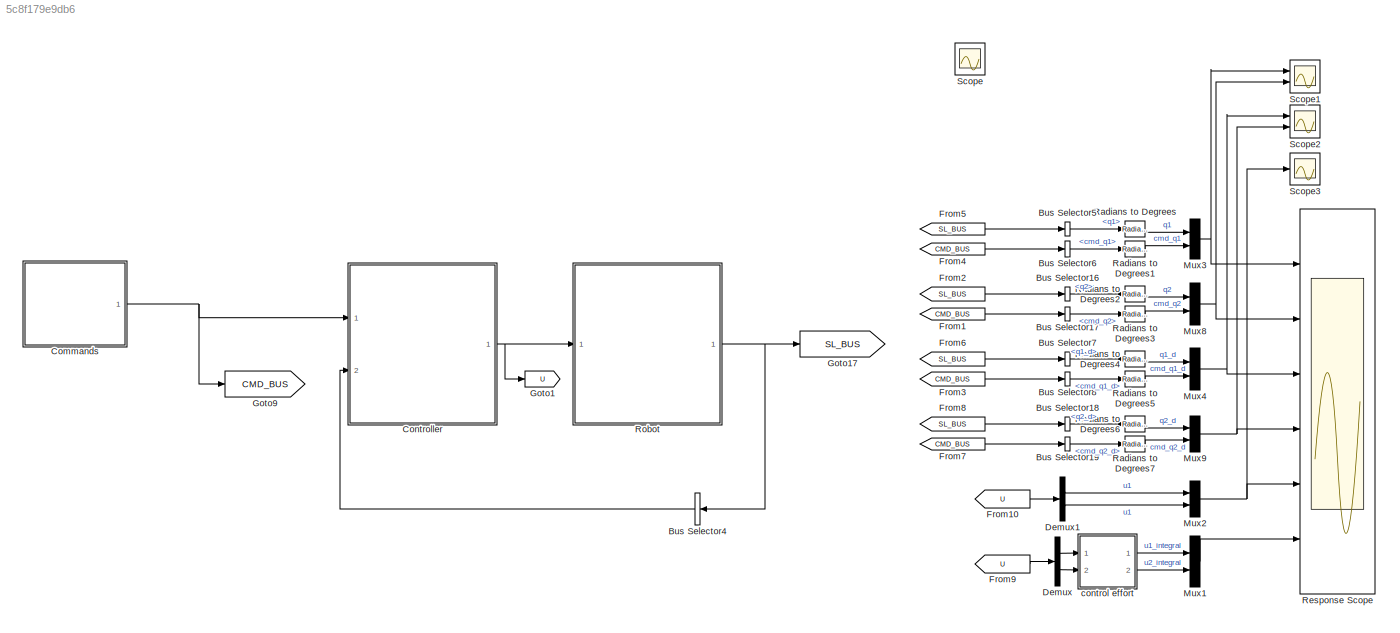
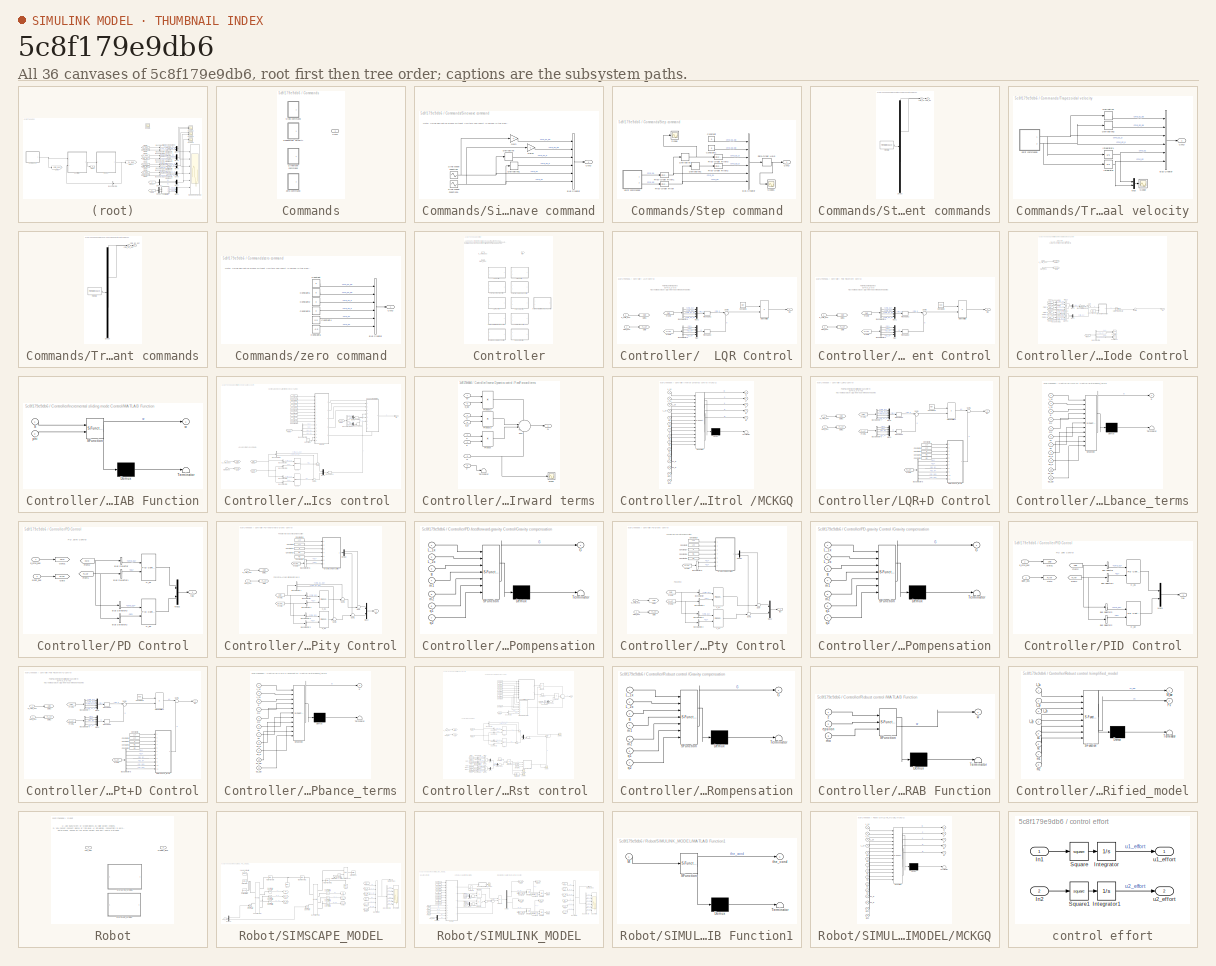
[diagram: thumbnail index - all 36 canvases of the model, root first then tree order]
MODEL slx_5c8f179e9db6
KIND model
CONFIG AbsTol = auto
CONFIG EnableMultiTasking = on
CONFIG FixedStep = auto
CONFIG MaxStep = auto
CONFIG MinStep = auto
CONFIG RelTol = 1e-5
CONFIG SampleTimeConstraint = Unconstrained
CONFIG SolverName = ode15s
CONFIG StartTime = 0.0
CONFIG StopTime = 15
BLOCK [BusSelector] Bus Selector16
  OutputSignals = q2
  Ports = [1, 1]
BLOCK [BusSelector] Bus Selector17
  OutputSignals = cmd_q2
  Ports = [1, 1]
BLOCK [BusSelector] Bus Selector18
  OutputSignals = q2_d
  Ports = [1, 1]
BLOCK [BusSelector] Bus Selector19
  OutputSignals = cmd_q2_d
  Ports = [1, 1]
BLOCK [BusSelector] Bus Selector4
  NameLocation = top
  OutputAsBus = on
  OutputSignals = q1_dd,q2_dd,q1_d,q2_d,q1,q2
  Ports = [1, 1]
BLOCK [BusSelector] Bus Selector5
  OutputSignals = q1
  Ports = [1, 1]
BLOCK [BusSelector] Bus Selector6
  OutputSignals = cmd_q1
  Ports = [1, 1]
BLOCK [BusSelector] Bus Selector7
  OutputSignals = q1_d
  Ports = [1, 1]
BLOCK [BusSelector] Bus Selector8
  OutputSignals = cmd_q1_d
  Ports = [1, 1]
BLOCK [SubSystem] Commands
  LabelModeActiveChoice = sinwave
  Ports = [0, 1]
  RequestExecContextInheritance = off
  Variant = on
  VariantControlMode = label
BLOCK [Outport] Commands/CMD
BLOCK [SubSystem] Commands/Sinewave command
  Ports = [0, 1]
  RequestExecContextInheritance = off
  VariantControl = sinwave
BLOCK [BusCreator] Commands/Sinewave command/Bus Creator
  DisplayOption = bar
  InheritFromInputs = on
  Inputs = 6
  Ports = [6, 1]
BLOCK [Outport] Commands/Sinewave command/CMD
BLOCK [Derivative] Commands/Sinewave command/Derivative
BLOCK [Derivative] Commands/Sinewave command/Derivative1
BLOCK [Gain] Commands/Sinewave command/Gain
  Gain = -1
BLOCK [Gain] Commands/Sinewave command/Gain1
  Gain = -1
BLOCK [Sin] Commands/Sinewave command/Sine Wave Function
  Ports = [0, 1]
  SampleTime = 0
BLOCK [Sin] Commands/Sinewave command/Sine Wave Function1
  Amplitude = 0.5
  Ports = [0, 1]
  SampleTime = 0
BLOCK [SubSystem] Commands/Step command
  Ports = [0, 1]
  RequestExecContextInheritance = off
  VariantControl = step
BLOCK [BusCreator] Commands/Step command/Bus Creator
  DisplayOption = bar
  InheritFromInputs = on
  Inputs = 6
  Ports = [6, 1]
BLOCK [Outport] Commands/Step command/CMD
BLOCK [Constant] Commands/Step command/Constant
  Value = 0
BLOCK [Constant] Commands/Step command/Constant1
  Value = 0
BLOCK [Derivative] Commands/Step command/Derivative
BLOCK [Derivative] Commands/Step command/Derivative1
BLOCK [Reference] Commands/Step command/First-Order Filter  REF=spsFirstOrderFilterLib/First-Order
Filter
  Ports = [1, 1]
  SourceBlock = spsFirstOrderFilterLib/First-Order\nFilter
  SourceProductBaseCode = PS
  SourceType = First-Order Filter
BLOCK [Reference] Commands/Step command/First-Order Filter1  REF=spsFirstOrderFilterLib/First-Order
Filter
  Ports = [1, 1]
  SourceBlock = spsFirstOrderFilterLib/First-Order\nFilter
  SourceProductBaseCode = PS
  SourceType = First-Order Filter
BLOCK [Reference] Commands/Step command/First-Order Filter2  REF=spsFirstOrderFilterLib/First-Order
Filter
  Ports = [1, 1]
  SourceBlock = spsFirstOrderFilterLib/First-Order\nFilter
  SourceProductBaseCode = PS
  SourceType = First-Order Filter
BLOCK [Reference] Commands/Step command/First-Order Filter3  REF=spsFirstOrderFilterLib/First-Order
Filter
  Ports = [1, 1]
  SourceBlock = spsFirstOrderFilterLib/First-Order\nFilter
  SourceProductBaseCode = PS
  SourceType = First-Order Filter
BLOCK [SubSystem] Commands/Step command/Joint commands
  ClipboardFcn = sigbuilder_block('clipboard');
  CloseFcn = sigbuilder_block('close');
  ContinueFcn = sigbuilder_block('continue');
  CopyFcn = sigbuilder_block('copy');
  DeleteFcn = sigbuilder_block('delete');
  LoadFcn = sigbuilder_block('load');
  MaskHideContents = on
  ModelCloseFcn = sigbuilder_block('modelClose');
  NameChangeFcn = sigbuilder_block('namechange');
  OpenFcn = sigbuilder_block('open',[0 36 1152 560.4 ]);
  PauseFcn = sigbuilder_block('pause');
  Ports = [0, 2]
  PreSaveFcn = sigbuilder_block('preSave');
  RequestExecContextInheritance = off
  StartFcn = sigbuilder_block('start');
  StopFcn = sigbuilder_block('stop');
  Tag = STV Subsys
BLOCK [Demux] Commands/Step command/Joint commands/Demux
  DisplayOption = none
  Outputs = 2
  Ports = [1, 2]
  Tag = STV Demux
BLOCK [FromWorkspace] Commands/Step command/Joint commands/FromWs
  Tag = STV FromWs
  VariableName = tuvar
BLOCK [Outport] Commands/Step command/Joint commands/cmd_q1
  Tag = STV Outport
BLOCK [Outport] Commands/Step command/Joint commands/cmd_q2
  Port = 2
  Tag = STV Outport
BLOCK [Scope] Commands/Step command/Scope
  Floating = off
  NumInputPorts = 1
  Ports = [1]
  ScopeSpecificationString = Simulink.scopes.TimeScopeBlockCfg('CurrentConfiguration', extmgr.ConfigurationSet(extmgr.Configuration('Core','General UI',true),extmgr.Configuration('Core','Source UI',true),extmgr.Configuration('Sources','WiredSimulink',true,'DataLoggingVariableName','ScopeData4'),extmgr.Configuration('Visuals','Time Domain',true,'SerializedDisplays',{struct('MinYLimReal','-0.19635','MaxYLimReal','1.76715','YLab...<+1367ch>
BLOCK [Scope] Commands/Step command/Scope1
  Floating = off
  NumInputPorts = 1
  Ports = [1]
  ScopeSpecificationString = Simulink.scopes.TimeScopeBlockCfg('CurrentConfiguration', extmgr.ConfigurationSet(extmgr.Configuration('Core','General UI',true),extmgr.Configuration('Core','Source UI',true),extmgr.Configuration('Sources','WiredSimulink',true,'DataLoggingVariableName','ScopeData2'),extmgr.Configuration('Visuals','Time Domain',true,'SerializedDisplays',{struct('MinYLimReal','0.02523','MaxYLimReal','0.16903','YLabe...<+1587ch>
BLOCK [ZeroOrderHold] Commands/Step command/Zero-Order Hold
  SampleTime = 0.001
BLOCK [SubSystem] Commands/Trapezoidal velocity
  Ports = [0, 1]
  RequestExecContextInheritance = off
  VariantControl = Trapezoidal velocity
BLOCK [BusCreator] Commands/Trapezoidal velocity/Bus Creator
  DisplayOption = bar
  InheritFromInputs = on
  Inputs = 6
  Ports = [6, 1]
BLOCK [Outport] Commands/Trapezoidal velocity/CMD
BLOCK [Derivative] Commands/Trapezoidal velocity/Derivative
BLOCK [Derivative] Commands/Trapezoidal velocity/Derivative2
BLOCK [Integrator] Commands/Trapezoidal velocity/Integrator
  Ports = [1, 1]
BLOCK [Integrator] Commands/Trapezoidal velocity/Integrator1
  Ports = [1, 1]
BLOCK [SubSystem] Commands/Trapezoidal velocity/Joint commands
  ClipboardFcn = sigbuilder_block('clipboard');
  CloseFcn = sigbuilder_block('close');
  ContinueFcn = sigbuilder_block('continue');
  CopyFcn = sigbuilder_block('copy');
  DeleteFcn = sigbuilder_block('delete');
  LoadFcn = sigbuilder_block('load');
  MaskHideContents = on
  ModelCloseFcn = sigbuilder_block('modelClose');
  NameChangeFcn = sigbuilder_block('namechange');
  OpenFcn = sigbuilder_block('open',[4.8 36 1142.4 525.6 ]);
  PauseFcn = sigbuilder_block('pause');
  Ports = [0, 2]
  PreSaveFcn = sigbuilder_block('preSave');
  RequestExecContextInheritance = off
  StartFcn = sigbuilder_block('start');
  StopFcn = sigbuilder_block('stop');
  Tag = STV Subsys
BLOCK [Demux] Commands/Trapezoidal velocity/Joint commands/Demux
  DisplayOption = none
  Outputs = 2
  Ports = [1, 2]
  Tag = STV Demux
BLOCK [FromWorkspace] Commands/Trapezoidal velocity/Joint commands/FromWs
  Tag = STV FromWs
  VariableName = tuvar
BLOCK [Outport] Commands/Trapezoidal velocity/Joint commands/cmd_q1_dot
  Tag = STV Outport
BLOCK [Outport] Commands/Trapezoidal velocity/Joint commands/cmd_q2_dot
  Port = 2
  Tag = STV Outport
BLOCK [Mux] Commands/Trapezoidal velocity/Mux
  DisplayOption = bar
  Inputs = 2
  Ports = [2, 1]
BLOCK [Scope] Commands/Trapezoidal velocity/Scope
  Floating = off
  NumInputPorts = 1
  Ports = [1]
  ScopeSpecificationString = Simulink.scopes.TimeScopeBlockCfg('CurrentConfiguration', extmgr.ConfigurationSet(extmgr.Configuration('Core','General UI',true),extmgr.Configuration('Core','Source UI',true),extmgr.Configuration('Sources','WiredSimulink',true,'DataLoggingVariableName','ScopeData10'),extmgr.Configuration('Visuals','Time Domain',true,'SerializedDisplays',{struct('MinYLimReal','-0.2','MaxYLimReal','1.8','YLabelReal'...<+1351ch>
BLOCK [SubSystem] Commands/zero command
  Ports = [0, 1]
  RequestExecContextInheritance = off
  VariantControl = zero
BLOCK [BusCreator] Commands/zero command/Bus Creator
  DisplayOption = bar
  InheritFromInputs = on
  Inputs = 6
  Ports = [6, 1]
BLOCK [Outport] Commands/zero command/CMD
BLOCK [Constant] Commands/zero command/Constant
  Value = 0
BLOCK [Constant] Commands/zero command/Constant1
  Value = 0
BLOCK [Constant] Commands/zero command/Constant2
  Value = 0
BLOCK [Constant] Commands/zero command/Constant3
  Value = 0
BLOCK [Constant] Commands/zero command/Constant4
  Value = 0.5
BLOCK [Constant] Commands/zero command/Constant5
  Value = -0.5
BLOCK [SubSystem] Controller
  LabelModeActiveChoice = Sliding_mode_control
  Ports = [2, 1]
  PropagateVariantConditions = on
  RequestExecContextInheritance = off
  Variant = on
  VariantControlMode = label
BLOCK [SubSystem] Controller/  LQR Control
  Ports = [2, 1]
  RequestExecContextInheritance = off
  VariantControl = LQR_control
BLOCK [BusSelector] Controller/  LQR Control/Bus Selector4
  OutputSignals = q1,q2,q1_d,q2_d
  Ports = [1, 4]
BLOCK [BusSelector] Controller/  LQR Control/Bus Selector5
  OutputSignals = cmd_q1,cmd_q2,cmd_q1_d,cmd_q2_d
  Ports = [1, 4]
BLOCK [Constant] Controller/  LQR Control/Constant1
  Value = Klqr
  VectorParams1D = off
BLOCK [From] Controller/  LQR Control/From3
  GotoTag = PLANT
BLOCK [From] Controller/  LQR Control/From4
  GotoTag = CMD
BLOCK [Goto] Controller/  LQR Control/Goto
  GotoTag = PLANT
BLOCK [Goto] Controller/  LQR Control/Goto1
  GotoTag = CMD
BLOCK [Product] Controller/  LQR Control/Matrix Multiply
  Multiplication = Matrix(*)
  Ports = [2, 1]
BLOCK [Mux] Controller/  LQR Control/Mux
  DisplayOption = bar
  Ports = [4, 1]
BLOCK [Mux] Controller/  LQR Control/Mux1
  DisplayOption = bar
  Ports = [4, 1]
BLOCK [Reshape] Controller/  LQR Control/Reshape1
  OutputDimensionality = Column vector (2-D)
  Ports = [1, 1]
BLOCK [Reshape] Controller/  LQR Control/Reshape2
  OutputDimensionality = Column vector (2-D)
  Ports = [1, 1]
BLOCK [Sum] Controller/  LQR Control/Sum3
  Inputs = |+-
  Ports = [2, 1]
BLOCK [Inport] Controller/  LQR Control/plant_bus
  Port = 2
BLOCK [Inport] Controller/  LQR Control/q_cmd_bus
BLOCK [Outport] Controller/  LQR Control/tau
BLOCK [SubSystem] Controller/ Pole Placement Control
  Ports = [2, 1]
  RequestExecContextInheritance = off
  VariantControl = PolePlacement_control
BLOCK [BusSelector] Controller/ Pole Placement Control/Bus Selector4
  OutputSignals = q1,q2,q1_d,q2_d
  Ports = [1, 4]
BLOCK [BusSelector] Controller/ Pole Placement Control/Bus Selector5
  OutputSignals = cmd_q1,cmd_q2,cmd_q1_d,cmd_q2_d
  Ports = [1, 4]
BLOCK [Constant] Controller/ Pole Placement Control/Constant1
  Value = Kpp
  VectorParams1D = off
BLOCK [From] Controller/ Pole Placement Control/From3
  GotoTag = PLANT
BLOCK [From] Controller/ Pole Placement Control/From4
  GotoTag = CMD
BLOCK [Goto] Controller/ Pole Placement Control/Goto
  GotoTag = PLANT
BLOCK [Goto] Controller/ Pole Placement Control/Goto1
  GotoTag = CMD
BLOCK [Product] Controller/ Pole Placement Control/Matrix Multiply
  Multiplication = Matrix(*)
  Ports = [2, 1]
BLOCK [Mux] Controller/ Pole Placement Control/Mux
  DisplayOption = bar
  Ports = [4, 1]
BLOCK [Mux] Controller/ Pole Placement Control/Mux1
  DisplayOption = bar
  Ports = [4, 1]
BLOCK [Reshape] Controller/ Pole Placement Control/Reshape1
  OutputDimensionality = Column vector (2-D)
  Ports = [1, 1]
BLOCK [Reshape] Controller/ Pole Placement Control/Reshape2
  OutputDimensionality = Column vector (2-D)
  Ports = [1, 1]
BLOCK [Sum] Controller/ Pole Placement Control/Sum3
  Inputs = |+-
  Ports = [2, 1]
BLOCK [Inport] Controller/ Pole Placement Control/plant_bus
  Port = 2
BLOCK [Inport] Controller/ Pole Placement Control/q_cmd_bus
BLOCK [Outport] Controller/ Pole Placement Control/tau
BLOCK [SubSystem] Controller/Incremental sliding mode Control
  Ports = [2, 1]
  RequestExecContextInheritance = off
  VariantControl = Sliding_mode_control
BLOCK [Gain] Controller/Incremental sliding mode Control/Bandwidth (lambda)
  Gain = lambda
BLOCK [BusSelector] Controller/Incremental sliding mode Control/Bus Selector1
  OutputSignals = cmd_q1
  Ports = [1, 1]
BLOCK [BusSelector] Controller/Incremental sliding mode Control/Bus Selector10
  OutputSignals = q2
  Ports = [1, 1]
BLOCK [BusSelector] Controller/Incremental sliding mode Control/Bus Selector11
  OutputSignals = q2_d
  Ports = [1, 1]
BLOCK [BusSelector] Controller/Incremental sliding mode Control/Bus Selector12
  OutputSignals = cmd_q1_d
  Ports = [1, 1]
BLOCK [BusSelector] Controller/Incremental sliding mode Control/Bus Selector13
  OutputSignals = q1_d
  Ports = [1, 1]
BLOCK [BusSelector] Controller/Incremental sliding mode Control/Bus Selector14
  OutputSignals = cmd_q2_d
  Ports = [1, 1]
BLOCK [BusSelector] Controller/Incremental sliding mode Control/Bus Selector2
  OutputSignals = q1
  Ports = [1, 1]
BLOCK [BusSelector] Controller/Incremental sliding mode Control/Bus Selector4
  OutputSignals = q1,q1_d,q2,q2_d
  Ports = [1, 4]
BLOCK [BusSelector] Controller/Incremental sliding mode Control/Bus Selector9
  OutputSignals = cmd_q2
  Ports = [1, 1]
BLOCK [From] Controller/Incremental sliding mode Control/From1
  GotoTag = PLANT
BLOCK [From] Controller/Incremental sliding mode Control/From10
  GotoTag = PLANT
BLOCK [From] Controller/Incremental sliding mode Control/From11
  GotoTag = CMD
BLOCK [From] Controller/Incremental sliding mode Control/From12
  GotoTag = PLANT
BLOCK [From] Controller/Incremental sliding mode Control/From2
  GotoTag = CMD
BLOCK [From] Controller/Incremental sliding mode Control/From4
  GotoTag = CMD
BLOCK [From] Controller/Incremental sliding mode Control/From7
  GotoTag = PLANT
BLOCK [From] Controller/Incremental sliding mode Control/From8
  GotoTag = PLANT
BLOCK [From] Controller/Incremental sliding mode Control/From9
  GotoTag = CMD
BLOCK [Goto] Controller/Incremental sliding mode Control/Goto
  GotoTag = PLANT
BLOCK [Goto] Controller/Incremental sliding mode Control/Goto1
  GotoTag = CMD
BLOCK [SubSystem] Controller/Incremental sliding mode Control/MATLAB Function
  ErrorFcn = Stateflow.Translate.translate
  PermitHierarchicalResolution = ExplicitOnly
  Ports = [2, 1]
  RequestExecContextInheritance = off
  SFBlockType = MATLAB Function
  TreatAsAtomicUnit = on
BLOCK [Demux] Controller/Incremental sliding mode Control/MATLAB Function/ Demux 
  Outputs = 1
  Ports = [1, 1]
BLOCK [S-Function] Controller/Incremental sliding mode Control/MATLAB Function/ SFunction 
  EnableBusSupport = on
  FunctionName = sf_sfun
  PortCounts = [2 2]
  Ports = [2, 2]
  SFcnIsStateOwnerBlock = off
  SFunctionDeploymentMode = off
  Tag = Stateflow S-Function 17
BLOCK [Terminator] Controller/Incremental sliding mode Control/MATLAB Function/ Terminator 
BLOCK [Inport] Controller/Incremental sliding mode Control/MATLAB Function/S
BLOCK [Inport] Controller/Incremental sliding mode Control/MATLAB Function/phi
  Port = 2
BLOCK [Outport] Controller/Incremental sliding mode Control/MATLAB Function/w
BLOCK [Sum] Controller/Incremental sliding mode Control/Minus
  IconShape = rectangular
  Inputs = +-
  Ports = [2, 1]
BLOCK [Sum] Controller/Incremental sliding mode Control/Minus1
  IconShape = rectangular
  Inputs = +-
  Ports = [2, 1]
BLOCK [Sum] Controller/Incremental sliding mode Control/Minus2
  IconShape = rectangular
  Inputs = +-
  Ports = [2, 1]
BLOCK [Sum] Controller/Incremental sliding mode Control/Minus3
  IconShape = rectangular
  Inputs = +-
  Ports = [2, 1]
BLOCK [Mux] Controller/Incremental sliding mode Control/Mux2
  DisplayOption = bar
  Inputs = 2
  Ports = [2, 1]
BLOCK [Mux] Controller/Incremental sliding mode Control/Mux3
  DisplayOption = bar
  Inputs = 2
  Ports = [2, 1]
BLOCK [Sum] Controller/Incremental sliding mode Control/Sum
  Inputs = |++
  Ports = [2, 1]
BLOCK [Sum] Controller/Incremental sliding mode Control/Sum5
  Inputs = ++|
  Ports = [2, 1]
BLOCK [Gain] Controller/Incremental sliding mode Control/Switching term gain
  Gain = Kslide
BLOCK [Reference] Controller/Incremental sliding mode Control/XY Graph  REF=simulink/Sinks/XY Graph
  Ports = [2]
  SourceBlock = simulink/Sinks/XY Graph
  SourceProductBaseCode = SL
  SourceType = XY scope.
BLOCK [Reference] Controller/Incremental sliding mode Control/XY Graph1  REF=simulink/Sinks/XY Graph
  Ports = [2]
  SourceBlock = simulink/Sinks/XY Graph
  SourceProductBaseCode = SL
  SourceType = XY scope.
BLOCK [Constant] Controller/Incremental sliding mode Control/boundray layer
  Value = phi
BLOCK [Inport] Controller/Incremental sliding mode Control/plant_bus
  Port = 2
BLOCK [Inport] Controller/Incremental sliding mode Control/q_cmd_bus
BLOCK [Outport] Controller/Incremental sliding mode Control/tau
BLOCK [SubSystem] Controller/Inverse Dynamics control 
  Ports = [2, 1]
  RequestExecContextInheritance = off
  VariantControl = Inverse_dynamics_control
BLOCK [BusSelector] Controller/Inverse Dynamics control /Bus Selector
  OutputSignals = cmd_q1
  Ports = [1, 1]
BLOCK [BusSelector] Controller/Inverse Dynamics control /Bus Selector1
  OutputSignals = q1
  Ports = [1, 1]
BLOCK [BusSelector] Controller/Inverse Dynamics control /Bus Selector2
  OutputSignals = q2
  Ports = [1, 1]
BLOCK [BusSelector] Controller/Inverse Dynamics control /Bus Selector3
  OutputSignals = cmd_q2
  Ports = [1, 1]
BLOCK [BusSelector] Controller/Inverse Dynamics control /Bus Selector4
  OutputSignals = q1,q2,q1_d,q2_d
  Ports = [1, 4]
BLOCK [BusSelector] Controller/Inverse Dynamics control /Bus Selector5
  OutputSignals = q1,q2,q1_d,q2_d
  Ports = [1, 4]
BLOCK [BusSelector] Controller/Inverse Dynamics control /Bus Selector7
  OutputSignals = cmd_q1_dd,cmd_q2_dd
  Ports = [1, 2]
BLOCK [Reference] Controller/Inverse Dynamics control /C_q1  REF=pid_lib/PID Controller (2DOF)
  Ports = [2, 1]
  SourceBlock = pid_lib/PID Controller (2DOF)
  SourceProductBaseCode = SL
  SourceType = PID 2dof
BLOCK [Reference] Controller/Inverse Dynamics control /C_q2  REF=pid_lib/PID Controller (2DOF)
  Ports = [2, 1]
  SourceBlock = pid_lib/PID Controller (2DOF)
  SourceProductBaseCode = SL
  SourceType = PID 2dof
BLOCK [Constant] Controller/Inverse Dynamics control /Constant
  Value = 0
BLOCK [Constant] Controller/Inverse Dynamics control /Constant15
  Value = b2
BLOCK [Constant] Controller/Inverse Dynamics control /Constant16
  Value = m1
BLOCK [Constant] Controller/Inverse Dynamics control /Constant17
  Value = g
BLOCK [Constant] Controller/Inverse Dynamics control /Constant18
  Value = m2
BLOCK [Constant] Controller/Inverse Dynamics control /Constant19
  Value = L1x
BLOCK [Constant] Controller/Inverse Dynamics control /Constant2
  Value = L2x
BLOCK [Constant] Controller/Inverse Dynamics control /Constant20
  Value = b1
BLOCK [Constant] Controller/Inverse Dynamics control /Constant6
  Value = L2y
BLOCK [Constant] Controller/Inverse Dynamics control /Constant7
  Value = L1y
BLOCK [SubSystem] Controller/Inverse Dynamics control /FeedForward terms
  PortSchema = {"entries":[{"content":{"sides":[{"content":{"connectorIds":["In1","In2","In3","In4","In5","In6"]},"type":"ConnectorPlacement.EquallySpacedRectSide","uuid":"236e7a2f-027c-4887-b3e9-bc0e11a59ec6"},{"content":{"connectorIds":["Out1"],"side":"RIGHT"},"type":"ConnectorPlacement.EquallySpacedRectSide","uuid":"0b727d96-7650-4ea0-95ac-5fb1bad7af10"},{"content":{"connectorIds":["In7"],"side":"TOP"},"type"...<+424ch>
  Ports = [8, 1]
  RequestExecContextInheritance = off
BLOCK [Inport] Controller/Inverse Dynamics control /FeedForward terms/C
  NameLocation = top
BLOCK [Inport] Controller/Inverse Dynamics control /FeedForward terms/F
  Port = 8
BLOCK [Inport] Controller/Inverse Dynamics control /FeedForward terms/G
  Port = 3
BLOCK [Inport] Controller/Inverse Dynamics control /FeedForward terms/K
  Port = 2
BLOCK [Inport] Controller/Inverse Dynamics control /FeedForward terms/M
  Port = 7
BLOCK [Product] Controller/Inverse Dynamics control /FeedForward terms/Product
  Multiplication = Matrix(*)
  Ports = [2, 1]
BLOCK [Product] Controller/Inverse Dynamics control /FeedForward terms/Product2
  Multiplication = Matrix(*)
  Ports = [2, 1]
BLOCK [Product] Controller/Inverse Dynamics control /FeedForward terms/Product3
  Multiplication = Matrix(*)
  Ports = [2, 1]
BLOCK [Outport] Controller/Inverse Dynamics control /FeedForward terms/Q
  NameLocation = top
BLOCK [Scope] Controller/Inverse Dynamics control /FeedForward terms/Scope
  Floating = off
  NumInputPorts = 1
  Ports = [1]
  ScopeSpecificationString = Simulink.scopes.TimeScopeBlockCfg('CurrentConfiguration', extmgr.ConfigurationSet(extmgr.Configuration('Core','General UI',true),extmgr.Configuration('Core','Source UI',true),extmgr.Configuration('Sources','WiredSimulink',true,'DataLoggingVariableName','ScopeData3'),extmgr.Configuration('Visuals','Time Domain',true,'SerializedDisplays',{struct('MinYLimReal','-2.62865','MaxYLimReal','17.45371','YLa...<+1363ch>
BLOCK [Sum] Controller/Inverse Dynamics control /FeedForward terms/Sum
  Inputs = +|+|+|+
  Ports = [4, 1]
BLOCK [Terminator] Controller/Inverse Dynamics control /FeedForward terms/Terminator
BLOCK [Inport] Controller/Inverse Dynamics control /FeedForward terms/q
  Port = 4
BLOCK [Inport] Controller/Inverse Dynamics control /FeedForward terms/q_d
  Port = 5
BLOCK [Inport] Controller/Inverse Dynamics control /FeedForward terms/q_dd
  Port = 6
BLOCK [From] Controller/Inverse Dynamics control /From1
  GotoTag = PLANT
BLOCK [From] Controller/Inverse Dynamics control /From2
  GotoTag = CMD
BLOCK [From] Controller/Inverse Dynamics control /From3
  GotoTag = PLANT
BLOCK [From] Controller/Inverse Dynamics control /From5
  GotoTag = PLANT
BLOCK [Goto] Controller/Inverse Dynamics control /Goto
  GotoTag = PLANT
BLOCK [Goto] Controller/Inverse Dynamics control /Goto1
  GotoTag = CMD
BLOCK [SubSystem] Controller/Inverse Dynamics control /MCKGQ
  ErrorFcn = Stateflow.Translate.translate
  PermitHierarchicalResolution = ExplicitOnly
  Ports = [15, 5]
  RequestExecContextInheritance = off
  SFBlockType = MATLAB Function
  TreatAsAtomicUnit = on
BLOCK [Demux] Controller/Inverse Dynamics control /MCKGQ/ Demux 
  Outputs = 1
  Ports = [1, 1]
BLOCK [S-Function] Controller/Inverse Dynamics control /MCKGQ/ SFunction 
  EnableBusSupport = on
  FunctionName = sf_sfun
  PortCounts = [15 6]
  Ports = [15, 6]
  SFcnIsStateOwnerBlock = off
  SFunctionDeploymentMode = off
  Tag = Stateflow S-Function 5
BLOCK [Terminator] Controller/Inverse Dynamics control /MCKGQ/ Terminator 
BLOCK [Outport] Controller/Inverse Dynamics control /MCKGQ/C
  Port = 2
BLOCK [Outport] Controller/Inverse Dynamics control /MCKGQ/G
  Port = 4
BLOCK [Outport] Controller/Inverse Dynamics control /MCKGQ/K
  Port = 3
BLOCK [Inport] Controller/Inverse Dynamics control /MCKGQ/L_1x
BLOCK [Inport] Controller/Inverse Dynamics control /MCKGQ/L_1y
  Port = 2
BLOCK [Inport] Controller/Inverse Dynamics control /MCKGQ/L_2x
  Port = 3
BLOCK [Inport] Controller/Inverse Dynamics control /MCKGQ/L_2y
  Port = 4
BLOCK [Outport] Controller/Inverse Dynamics control /MCKGQ/M
BLOCK [Outport] Controller/Inverse Dynamics control /MCKGQ/Q
  Port = 5
BLOCK [Inport] Controller/Inverse Dynamics control /MCKGQ/b1
  Port = 5
BLOCK [Inport] Controller/Inverse Dynamics control /MCKGQ/b2
  Port = 6
BLOCK [Inport] Controller/Inverse Dynamics control /MCKGQ/g
  Port = 7
BLOCK [Inport] Controller/Inverse Dynamics control /MCKGQ/m1
  Port = 8
BLOCK [Inport] Controller/Inverse Dynamics control /MCKGQ/m2
  Port = 9
BLOCK [Inport] Controller/Inverse Dynamics control /MCKGQ/q1
  Port = 10
BLOCK [Inport] Controller/Inverse Dynamics control /MCKGQ/q1_D
  Port = 12
BLOCK [Inport] Controller/Inverse Dynamics control /MCKGQ/q2
  Port = 11
BLOCK [Inport] Controller/Inverse Dynamics control /MCKGQ/q2_D
  Port = 13
BLOCK [Inport] Controller/Inverse Dynamics control /MCKGQ/tau1
  Port = 14
BLOCK [Inport] Controller/Inverse Dynamics control /MCKGQ/tau2
  Port = 15
BLOCK [Mux] Controller/Inverse Dynamics control /Mux2
  DisplayOption = bar
  Inputs = 2
  Ports = [2, 1]
BLOCK [Mux] Controller/Inverse Dynamics control /Mux5
  DisplayOption = bar
  Inputs = 2
  Ports = [2, 1]
BLOCK [Mux] Controller/Inverse Dynamics control /Mux7
  DisplayOption = bar
  Inputs = 2
  Ports = [2, 1]
BLOCK [Reshape] Controller/Inverse Dynamics control /Reshape1
  OutputDimensionality = Column vector (2-D)
  Ports = [1, 1]
BLOCK [Reshape] Controller/Inverse Dynamics control /Reshape2
  OutputDimensionality = Column vector (2-D)
  Ports = [1, 1]
BLOCK [Reshape] Controller/Inverse Dynamics control /Reshape5
  OutputDimensionality = Column vector (2-D)
  Ports = [1, 1]
BLOCK [Sum] Controller/Inverse Dynamics control /Sum
  Inputs = ++|
  Ports = [2, 1]
BLOCK [Sum] Controller/Inverse Dynamics control /Sum1
  Inputs = ++|
  Ports = [2, 1]
BLOCK [Inport] Controller/Inverse Dynamics control /plant_bus
  Port = 2
BLOCK [Inport] Controller/Inverse Dynamics control /q_cmd_bus
BLOCK [Outport] Controller/Inverse Dynamics control /tau
BLOCK [SubSystem] Controller/LQR+D Control
  Ports = [2, 1]
  RequestExecContextInheritance = off
  VariantControl = LQR_D_control
BLOCK [BusSelector] Controller/LQR+D Control/Bus Selector6
  OutputSignals = q1,q2,q1_d,q2_d
  Ports = [1, 4]
BLOCK [BusSelector] Controller/LQR+D Control/Bus Selector7
  OutputSignals = cmd_q1,cmd_q2,cmd_q1_d,cmd_q2_d
  Ports = [1, 4]
BLOCK [BusSelector] Controller/LQR+D Control/Bus Selector8
  OutputSignals = q1,q2,q1_d,q2_d,q1_dd,q2_dd
  Ports = [1, 6]
BLOCK [Constant] Controller/LQR+D Control/Constant13
  Value = Klqr
  VectorParams1D = off
BLOCK [Constant] Controller/LQR+D Control/Constant3
  Value = m1
BLOCK [Constant] Controller/LQR+D Control/Constant4
  Value = g
BLOCK [Constant] Controller/LQR+D Control/Constant5
  Value = m2
BLOCK [Constant] Controller/LQR+D Control/Constant8
  Value = L1x
BLOCK [Constant] Controller/LQR+D Control/Constant9
  Value = L2x
BLOCK [From] Controller/LQR+D Control/From5
  GotoTag = PLANT
BLOCK [From] Controller/LQR+D Control/From6
  GotoTag = CMD
BLOCK [From] Controller/LQR+D Control/From7
  GotoTag = PLANT
BLOCK [Goto] Controller/LQR+D Control/Goto2
  GotoTag = PLANT
BLOCK [Goto] Controller/LQR+D Control/Goto3
  GotoTag = CMD
BLOCK [Product] Controller/LQR+D Control/Matrix Multiply1
  Multiplication = Matrix(*)
  Ports = [2, 1]
BLOCK [Mux] Controller/LQR+D Control/Mux4
  DisplayOption = bar
  Ports = [4, 1]
BLOCK [Mux] Controller/LQR+D Control/Mux5
  DisplayOption = bar
  Ports = [4, 1]
BLOCK [Reshape] Controller/LQR+D Control/Reshape3
  OutputDimensionality = Column vector (2-D)
  Ports = [1, 1]
BLOCK [Reshape] Controller/LQR+D Control/Reshape4
  OutputDimensionality = Column vector (2-D)
  Ports = [1, 1]
BLOCK [Sum] Controller/LQR+D Control/Sum4
  Inputs = |+-
  Ports = [2, 1]
BLOCK [Sum] Controller/LQR+D Control/Sum5
  Inputs = |++
  Ports = [2, 1]
BLOCK [SubSystem] Controller/LQR+D Control/disturbance_terms
  ErrorFcn = Stateflow.Translate.translate
  PermitHierarchicalResolution = ExplicitOnly
  Ports = [11, 1]
  RequestExecContextInheritance = off
  SFBlockType = MATLAB Function
  TreatAsAtomicUnit = on
BLOCK [Demux] Controller/LQR+D Control/disturbance_terms/ Demux 
  Outputs = 1
  Ports = [1, 1]
BLOCK [S-Function] Controller/LQR+D Control/disturbance_terms/ SFunction 
  EnableBusSupport = on
  FunctionName = sf_sfun
  PortCounts = [11 2]
  Ports = [11, 2]
  SFcnIsStateOwnerBlock = off
  SFunctionDeploymentMode = off
  Tag = Stateflow S-Function 1
BLOCK [Terminator] Controller/LQR+D Control/disturbance_terms/ Terminator 
BLOCK [Inport] Controller/LQR+D Control/disturbance_terms/L_1x
BLOCK [Inport] Controller/LQR+D Control/disturbance_terms/L_2x
  Port = 2
BLOCK [Outport] Controller/LQR+D Control/disturbance_terms/d
BLOCK [Inport] Controller/LQR+D Control/disturbance_terms/g
  Port = 3
BLOCK [Inport] Controller/LQR+D Control/disturbance_terms/m1
  Port = 4
BLOCK [Inport] Controller/LQR+D Control/disturbance_terms/m2
  Port = 5
BLOCK [Inport] Controller/LQR+D Control/disturbance_terms/q1
  Port = 6
BLOCK [Inport] Controller/LQR+D Control/disturbance_terms/q1_D
  Port = 8
BLOCK [Inport] Controller/LQR+D Control/disturbance_terms/q1_DD
  Port = 10
BLOCK [Inport] Controller/LQR+D Control/disturbance_terms/q2
  Port = 7
BLOCK [Inport] Controller/LQR+D Control/disturbance_terms/q2_D
  Port = 9
BLOCK [Inport] Controller/LQR+D Control/disturbance_terms/q2_DD
  Port = 11
BLOCK [Inport] Controller/LQR+D Control/plant_bus
  Port = 2
BLOCK [Inport] Controller/LQR+D Control/q_cmd_bus
BLOCK [Outport] Controller/LQR+D Control/tau
BLOCK [SubSystem] Controller/PD Control
  Ports = [2, 1]
  RequestExecContextInheritance = off
  VariantControl = PD_control
BLOCK [BusSelector] Controller/PD Control/Bus Selector
  OutputSignals = cmd_q1
  Ports = [1, 1]
BLOCK [BusSelector] Controller/PD Control/Bus Selector1
  OutputSignals = q1
  Ports = [1, 1]
BLOCK [BusSelector] Controller/PD Control/Bus Selector2
  OutputSignals = q2
  Ports = [1, 1]
BLOCK [BusSelector] Controller/PD Control/Bus Selector3
  OutputSignals = cmd_q2
  Ports = [1, 1]
BLOCK [Reference] Controller/PD Control/C_q1  REF=pid_lib/PID Controller (2DOF)
  Ports = [2, 1]
  SourceBlock = pid_lib/PID Controller (2DOF)
  SourceProductBaseCode = SL
  SourceType = PID 2dof
BLOCK [Reference] Controller/PD Control/C_q2  REF=pid_lib/PID Controller (2DOF)
  Ports = [2, 1]
  SourceBlock = pid_lib/PID Controller (2DOF)
  SourceProductBaseCode = SL
  SourceType = PID 2dof
BLOCK [From] Controller/PD Control/From1
  GotoTag = PLANT
BLOCK [From] Controller/PD Control/From2
  GotoTag = CMD
BLOCK [Goto] Controller/PD Control/Goto
  GotoTag = PLANT
BLOCK [Goto] Controller/PD Control/Goto1
  GotoTag = CMD
BLOCK [Mux] Controller/PD Control/Mux2
  DisplayOption = bar
  Inputs = 2
  Ports = [2, 1]
BLOCK [Inport] Controller/PD Control/plant_bus
  Port = 2
BLOCK [Inport] Controller/PD Control/q_cmd_bus
BLOCK [Outport] Controller/PD Control/tau
BLOCK [SubSystem] Controller/PD-feedforward-gravity Control
  Ports = [2, 1]
  RequestExecContextInheritance = off
  VariantControl = PD_plus_gravity_plus_feadforward
BLOCK [BusSelector] Controller/PD-feedforward-gravity Control/Bus Selector
  OutputSignals = cmd_q1
  Ports = [1, 1]
BLOCK [BusSelector] Controller/PD-feedforward-gravity Control/Bus Selector1
  OutputSignals = q1
  Ports = [1, 1]
BLOCK [BusSelector] Controller/PD-feedforward-gravity Control/Bus Selector2
  OutputSignals = q2
  Ports = [1, 1]
BLOCK [BusSelector] Controller/PD-feedforward-gravity Control/Bus Selector3
  OutputSignals = cmd_q2
  Ports = [1, 1]
BLOCK [BusSelector] Controller/PD-feedforward-gravity Control/Bus Selector5
  OutputSignals = q1,q2
  Ports = [1, 2]
BLOCK [BusSelector] Controller/PD-feedforward-gravity Control/Bus Selector7
  OutputSignals = cmd_q1_dd,cmd_q2_dd
  Ports = [1, 2]
BLOCK [Reference] Controller/PD-feedforward-gravity Control/C_q1  REF=pid_lib/PID Controller (2DOF)
  Ports = [2, 1]
  SourceBlock = pid_lib/PID Controller (2DOF)
  SourceProductBaseCode = SL
  SourceType = PID 2dof
BLOCK [Reference] Controller/PD-feedforward-gravity Control/C_q2  REF=pid_lib/PID Controller (2DOF)
  Ports = [2, 1]
  SourceBlock = pid_lib/PID Controller (2DOF)
  SourceProductBaseCode = SL
  SourceType = PID 2dof
BLOCK [Constant] Controller/PD-feedforward-gravity Control/Constant16
  Value = m1
BLOCK [Constant] Controller/PD-feedforward-gravity Control/Constant17
  Value = g
BLOCK [Constant] Controller/PD-feedforward-gravity Control/Constant18
  Value = m2
BLOCK [Constant] Controller/PD-feedforward-gravity Control/Constant19
  Value = L1x
BLOCK [Constant] Controller/PD-feedforward-gravity Control/Constant2
  Value = L2x
BLOCK [Demux] Controller/PD-feedforward-gravity Control/Demux
  Outputs = 2
  Ports = [1, 2]
BLOCK [From] Controller/PD-feedforward-gravity Control/From1
  GotoTag = PLANT
BLOCK [From] Controller/PD-feedforward-gravity Control/From2
  GotoTag = CMD
BLOCK [From] Controller/PD-feedforward-gravity Control/From4
  GotoTag = PLANT
BLOCK [Goto] Controller/PD-feedforward-gravity Control/Goto
  GotoTag = PLANT
BLOCK [Goto] Controller/PD-feedforward-gravity Control/Goto1
  GotoTag = CMD
BLOCK [SubSystem] Controller/PD-feedforward-gravity Control/Gravity compensation
  ErrorFcn = Stateflow.Translate.translate
  PermitHierarchicalResolution = ExplicitOnly
  Ports = [7, 1]
  RequestExecContextInheritance = off
  SFBlockType = MATLAB Function
  TreatAsAtomicUnit = on
BLOCK [Demux] Controller/PD-feedforward-gravity Control/Gravity compensation/ Demux 
  Outputs = 1
  Ports = [1, 1]
BLOCK [S-Function] Controller/PD-feedforward-gravity Control/Gravity compensation/ SFunction 
  EnableBusSupport = on
  FunctionName = sf_sfun
  PortCounts = [7 2]
  Ports = [7, 2]
  SFcnIsStateOwnerBlock = off
  SFunctionDeploymentMode = off
  Tag = Stateflow S-Function 4
BLOCK [Terminator] Controller/PD-feedforward-gravity Control/Gravity compensation/ Terminator 
BLOCK [Outport] Controller/PD-feedforward-gravity Control/Gravity compensation/G
BLOCK [Inport] Controller/PD-feedforward-gravity Control/Gravity compensation/L_1x
BLOCK [Inport] Controller/PD-feedforward-gravity Control/Gravity compensation/L_2x
  Port = 2
BLOCK [Inport] Controller/PD-feedforward-gravity Control/Gravity compensation/g
  Port = 3
BLOCK [Inport] Controller/PD-feedforward-gravity Control/Gravity compensation/m1
  Port = 4
BLOCK [Inport] Controller/PD-feedforward-gravity Control/Gravity compensation/m2
  Port = 5
BLOCK [Inport] Controller/PD-feedforward-gravity Control/Gravity compensation/q1
  Port = 6
BLOCK [Inport] Controller/PD-feedforward-gravity Control/Gravity compensation/q2
  Port = 7
BLOCK [Mux] Controller/PD-feedforward-gravity Control/Mux2
  DisplayOption = bar
  Inputs = 2
  Ports = [2, 1]
BLOCK [Sum] Controller/PD-feedforward-gravity Control/Sum
  Inputs = ++|
  Ports = [2, 1]
BLOCK [Sum] Controller/PD-feedforward-gravity Control/Sum1
  Inputs = ++|
  Ports = [2, 1]
BLOCK [Sum] Controller/PD-feedforward-gravity Control/Sum2
  Inputs = ++|
  Ports = [2, 1]
BLOCK [Sum] Controller/PD-feedforward-gravity Control/Sum3
  Inputs = ++|
  Ports = [2, 1]
BLOCK [Inport] Controller/PD-feedforward-gravity Control/plant_bus
  Port = 2
BLOCK [Inport] Controller/PD-feedforward-gravity Control/q_cmd_bus
BLOCK [Outport] Controller/PD-feedforward-gravity Control/tau
BLOCK [SubSystem] Controller/PD-gravity Control 
  Ports = [2, 1]
  RequestExecContextInheritance = off
  VariantControl = PD_plus_gravity
BLOCK [BusSelector] Controller/PD-gravity Control /Bus Selector
  OutputSignals = cmd_q1
  Ports = [1, 1]
BLOCK [BusSelector] Controller/PD-gravity Control /Bus Selector1
  OutputSignals = q1
  Ports = [1, 1]
BLOCK [BusSelector] Controller/PD-gravity Control /Bus Selector2
  OutputSignals = q2
  Ports = [1, 1]
BLOCK [BusSelector] Controller/PD-gravity Control /Bus Selector3
  OutputSignals = cmd_q2
  Ports = [1, 1]
BLOCK [BusSelector] Controller/PD-gravity Control /Bus Selector5
  OutputSignals = q1,q2
  Ports = [1, 2]
BLOCK [Reference] Controller/PD-gravity Control /C_q1  REF=pid_lib/PID Controller (2DOF)
  Ports = [2, 1]
  SourceBlock = pid_lib/PID Controller (2DOF)
  SourceProductBaseCode = SL
  SourceType = PID 2dof
BLOCK [Reference] Controller/PD-gravity Control /C_q2  REF=pid_lib/PID Controller (2DOF)
  Ports = [2, 1]
  SourceBlock = pid_lib/PID Controller (2DOF)
  SourceProductBaseCode = SL
  SourceType = PID 2dof
BLOCK [Constant] Controller/PD-gravity Control /Constant16
  Value = m1
BLOCK [Constant] Controller/PD-gravity Control /Constant17
  Value = g
BLOCK [Constant] Controller/PD-gravity Control /Constant18
  Value = m2
BLOCK [Constant] Controller/PD-gravity Control /Constant19
  Value = L1x
BLOCK [Constant] Controller/PD-gravity Control /Constant2
  Value = L2x
BLOCK [Demux] Controller/PD-gravity Control /Demux
  Outputs = 2
  Ports = [1, 2]
BLOCK [From] Controller/PD-gravity Control /From1
  GotoTag = PLANT
BLOCK [From] Controller/PD-gravity Control /From2
  GotoTag = CMD
BLOCK [From] Controller/PD-gravity Control /From4
  GotoTag = PLANT
BLOCK [Goto] Controller/PD-gravity Control /Goto
  GotoTag = PLANT
BLOCK [Goto] Controller/PD-gravity Control /Goto1
  GotoTag = CMD
BLOCK [SubSystem] Controller/PD-gravity Control /Gravity compensation
  ErrorFcn = Stateflow.Translate.translate
  PermitHierarchicalResolution = ExplicitOnly
  Ports = [7, 1]
  RequestExecContextInheritance = off
  SFBlockType = MATLAB Function
  TreatAsAtomicUnit = on
BLOCK [Demux] Controller/PD-gravity Control /Gravity compensation/ Demux 
  Outputs = 1
  Ports = [1, 1]
BLOCK [S-Function] Controller/PD-gravity Control /Gravity compensation/ SFunction 
  EnableBusSupport = on
  FunctionName = sf_sfun
  PortCounts = [7 2]
  Ports = [7, 2]
  SFcnIsStateOwnerBlock = off
  SFunctionDeploymentMode = off
  Tag = Stateflow S-Function 7
BLOCK [Terminator] Controller/PD-gravity Control /Gravity compensation/ Terminator 
BLOCK [Outport] Controller/PD-gravity Control /Gravity compensation/G
BLOCK [Inport] Controller/PD-gravity Control /Gravity compensation/L_1x
BLOCK [Inport] Controller/PD-gravity Control /Gravity compensation/L_2x
  Port = 2
BLOCK [Inport] Controller/PD-gravity Control /Gravity compensation/g
  Port = 3
BLOCK [Inport] Controller/PD-gravity Control /Gravity compensation/m1
  Port = 4
BLOCK [Inport] Controller/PD-gravity Control /Gravity compensation/m2
  Port = 5
BLOCK [Inport] Controller/PD-gravity Control /Gravity compensation/q1
  Port = 6
BLOCK [Inport] Controller/PD-gravity Control /Gravity compensation/q2
  Port = 7
BLOCK [Mux] Controller/PD-gravity Control /Mux2
  DisplayOption = bar
  Inputs = 2
  Ports = [2, 1]
BLOCK [Sum] Controller/PD-gravity Control /Sum
  Inputs = ++|
  Ports = [2, 1]
BLOCK [Sum] Controller/PD-gravity Control /Sum1
  Inputs = ++|
  Ports = [2, 1]
BLOCK [Inport] Controller/PD-gravity Control /plant_bus
  Port = 2
BLOCK [Inport] Controller/PD-gravity Control /q_cmd_bus
BLOCK [Outport] Controller/PD-gravity Control /tau
BLOCK [SubSystem] Controller/PID Control
  Ports = [2, 1]
  RequestExecContextInheritance = off
  VariantControl = PID_control
BLOCK [BusSelector] Controller/PID Control/Bus Selector
  OutputSignals = cmd_q1
  Ports = [1, 1]
BLOCK [BusSelector] Controller/PID Control/Bus Selector1
  OutputSignals = q1
  Ports = [1, 1]
BLOCK [BusSelector] Controller/PID Control/Bus Selector2
  OutputSignals = q2
  Ports = [1, 1]
BLOCK [BusSelector] Controller/PID Control/Bus Selector3
  OutputSignals = cmd_q2
  Ports = [1, 1]
BLOCK [Reference] Controller/PID Control/C_q1  REF=pid_lib/PID Controller (2DOF)
  Ports = [2, 1]
  SourceBlock = pid_lib/PID Controller (2DOF)
  SourceProductBaseCode = SL
  SourceType = PID 2dof
BLOCK [Reference] Controller/PID Control/C_q2  REF=pid_lib/PID Controller (2DOF)
  Ports = [2, 1]
  SourceBlock = pid_lib/PID Controller (2DOF)
  SourceProductBaseCode = SL
  SourceType = PID 2dof
BLOCK [From] Controller/PID Control/From1
  GotoTag = PLANT
BLOCK [From] Controller/PID Control/From2
  GotoTag = CMD
BLOCK [Goto] Controller/PID Control/Goto
  GotoTag = PLANT
BLOCK [Goto] Controller/PID Control/Goto1
  GotoTag = CMD
BLOCK [Mux] Controller/PID Control/Mux1
  DisplayOption = bar
  Inputs = 2
  Ports = [2, 1]
BLOCK [Inport] Controller/PID Control/plant_bus
  Port = 2
BLOCK [Inport] Controller/PID Control/q_cmd_bus
BLOCK [Outport] Controller/PID Control/tau
BLOCK [SubSystem] Controller/Pole Placement+D Control
  Ports = [2, 1]
  RequestExecContextInheritance = off
  VariantControl = PolePlacement_D_control
BLOCK [BusSelector] Controller/Pole Placement+D Control/Bus Selector6
  OutputSignals = q1,q2,q1_d,q2_d
  Ports = [1, 4]
BLOCK [BusSelector] Controller/Pole Placement+D Control/Bus Selector7
  OutputSignals = cmd_q1,cmd_q2,cmd_q1_d,cmd_q2_d
  Ports = [1, 4]
BLOCK [BusSelector] Controller/Pole Placement+D Control/Bus Selector8
  OutputSignals = q1,q2,q1_d,q2_d,q1_dd,q2_dd
  Ports = [1, 6]
BLOCK [Constant] Controller/Pole Placement+D Control/Constant13
  Value = Kpp
  VectorParams1D = off
BLOCK [Constant] Controller/Pole Placement+D Control/Constant3
  Value = m1
BLOCK [Constant] Controller/Pole Placement+D Control/Constant4
  Value = g
BLOCK [Constant] Controller/Pole Placement+D Control/Constant5
  Value = m2
BLOCK [Constant] Controller/Pole Placement+D Control/Constant8
  Value = L1x
BLOCK [Constant] Controller/Pole Placement+D Control/Constant9
  Value = L2x
BLOCK [From] Controller/Pole Placement+D Control/From5
  GotoTag = PLANT
BLOCK [From] Controller/Pole Placement+D Control/From6
  GotoTag = CMD
BLOCK [From] Controller/Pole Placement+D Control/From7
  GotoTag = PLANT
BLOCK [Goto] Controller/Pole Placement+D Control/Goto2
  GotoTag = PLANT
BLOCK [Goto] Controller/Pole Placement+D Control/Goto3
  GotoTag = CMD
BLOCK [Product] Controller/Pole Placement+D Control/Matrix Multiply1
  Multiplication = Matrix(*)
  Ports = [2, 1]
BLOCK [Mux] Controller/Pole Placement+D Control/Mux4
  DisplayOption = bar
  Ports = [4, 1]
BLOCK [Mux] Controller/Pole Placement+D Control/Mux5
  DisplayOption = bar
  Ports = [4, 1]
BLOCK [Reshape] Controller/Pole Placement+D Control/Reshape3
  OutputDimensionality = Column vector (2-D)
  Ports = [1, 1]
BLOCK [Reshape] Controller/Pole Placement+D Control/Reshape4
  OutputDimensionality = Column vector (2-D)
  Ports = [1, 1]
BLOCK [Sum] Controller/Pole Placement+D Control/Sum4
  Inputs = |+-
  Ports = [2, 1]
BLOCK [Sum] Controller/Pole Placement+D Control/Sum5
  Inputs = |++
  Ports = [2, 1]
BLOCK [SubSystem] Controller/Pole Placement+D Control/disturbance_terms
  ErrorFcn = Stateflow.Translate.translate
  PermitHierarchicalResolution = ExplicitOnly
  Ports = [11, 1]
  RequestExecContextInheritance = off
  SFBlockType = MATLAB Function
  TreatAsAtomicUnit = on
BLOCK [Demux] Controller/Pole Placement+D Control/disturbance_terms/ Demux 
  Outputs = 1
  Ports = [1, 1]
BLOCK [S-Function] Controller/Pole Placement+D Control/disturbance_terms/ SFunction 
  EnableBusSupport = on
  FunctionName = sf_sfun
  PortCounts = [11 2]
  Ports = [11, 2]
  SFcnIsStateOwnerBlock = off
  SFunctionDeploymentMode = off
  Tag = Stateflow S-Function 19
BLOCK [Terminator] Controller/Pole Placement+D Control/disturbance_terms/ Terminator 
BLOCK [Inport] Controller/Pole Placement+D Control/disturbance_terms/L_1x
BLOCK [Inport] Controller/Pole Placement+D Control/disturbance_terms/L_2x
  Port = 2
BLOCK [Outport] Controller/Pole Placement+D Control/disturbance_terms/d
BLOCK [Inport] Controller/Pole Placement+D Control/disturbance_terms/g
  Port = 3
BLOCK [Inport] Controller/Pole Placement+D Control/disturbance_terms/m1
  Port = 4
BLOCK [Inport] Controller/Pole Placement+D Control/disturbance_terms/m2
  Port = 5
BLOCK [Inport] Controller/Pole Placement+D Control/disturbance_terms/q1
  Port = 6
BLOCK [Inport] Controller/Pole Placement+D Control/disturbance_terms/q1_D
  Port = 8
BLOCK [Inport] Controller/Pole Placement+D Control/disturbance_terms/q1_DD
  Port = 10
BLOCK [Inport] Controller/Pole Placement+D Control/disturbance_terms/q2
  Port = 7
BLOCK [Inport] Controller/Pole Placement+D Control/disturbance_terms/q2_D
  Port = 9
BLOCK [Inport] Controller/Pole Placement+D Control/disturbance_terms/q2_DD
  Port = 11
BLOCK [Inport] Controller/Pole Placement+D Control/plant_bus
  Port = 2
BLOCK [Inport] Controller/Pole Placement+D Control/q_cmd_bus
BLOCK [Outport] Controller/Pole Placement+D Control/tau
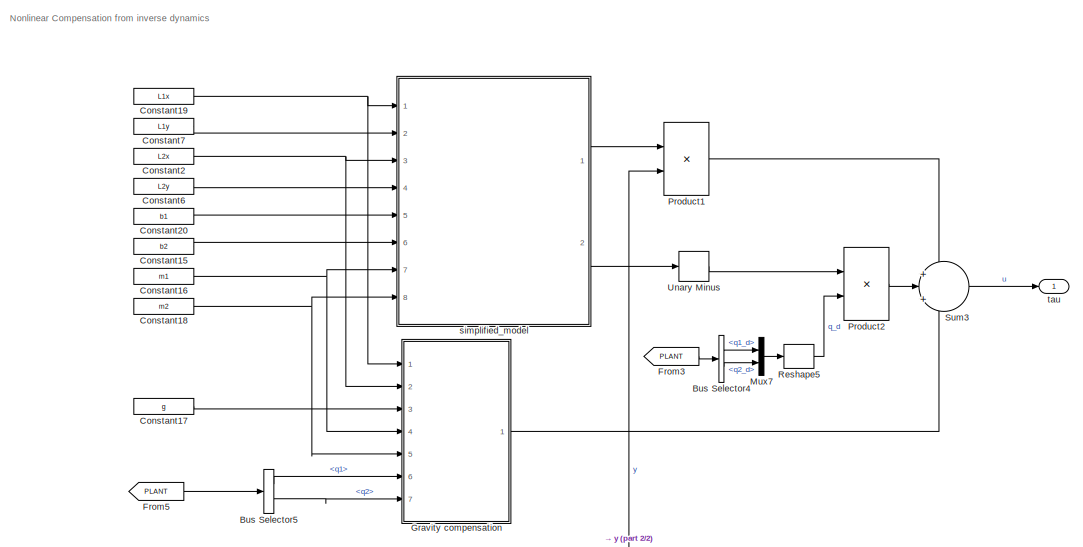
[diagram: Controller/Robust control  - part 1/2, top center region]
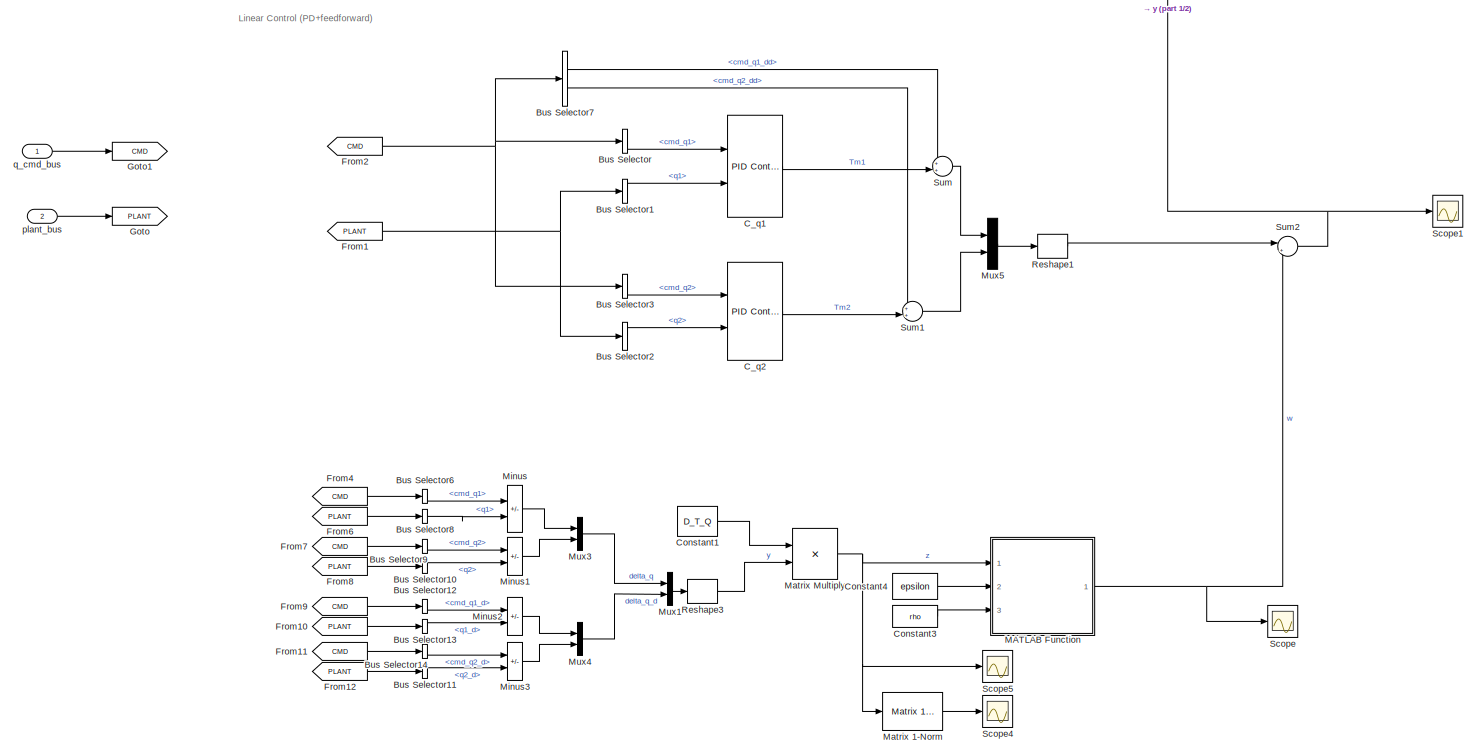
[diagram: Controller/Robust control  - part 2/2, full width, bottom band]
BLOCK [SubSystem] Controller/Robust control 
  Ports = [2, 1]
  RequestExecContextInheritance = off
  VariantControl = robust_control
BLOCK [BusSelector] Controller/Robust control /Bus Selector
  OutputSignals = cmd_q1
  Ports = [1, 1]
BLOCK [BusSelector] Controller/Robust control /Bus Selector1
  OutputSignals = q1
  Ports = [1, 1]
BLOCK [BusSelector] Controller/Robust control /Bus Selector10
  OutputSignals = q2
  Ports = [1, 1]
BLOCK [BusSelector] Controller/Robust control /Bus Selector11
  OutputSignals = q2_d
  Ports = [1, 1]
BLOCK [BusSelector] Controller/Robust control /Bus Selector12
  OutputSignals = cmd_q1_d
  Ports = [1, 1]
BLOCK [BusSelector] Controller/Robust control /Bus Selector13
  OutputSignals = q1_d
  Ports = [1, 1]
BLOCK [BusSelector] Controller/Robust control /Bus Selector14
  OutputSignals = cmd_q2_d
  Ports = [1, 1]
BLOCK [BusSelector] Controller/Robust control /Bus Selector2
  OutputSignals = q2
  Ports = [1, 1]
BLOCK [BusSelector] Controller/Robust control /Bus Selector3
  OutputSignals = cmd_q2
  Ports = [1, 1]
BLOCK [BusSelector] Controller/Robust control /Bus Selector4
  OutputSignals = q1_d,q2_d
  Ports = [1, 2]
BLOCK [BusSelector] Controller/Robust control /Bus Selector5
  OutputSignals = q1,q2
  Ports = [1, 2]
BLOCK [BusSelector] Controller/Robust control /Bus Selector6
  OutputSignals = cmd_q1
  Ports = [1, 1]
BLOCK [BusSelector] Controller/Robust control /Bus Selector7
  OutputSignals = cmd_q1_dd,cmd_q2_dd
  Ports = [1, 2]
BLOCK [BusSelector] Controller/Robust control /Bus Selector8
  OutputSignals = q1
  Ports = [1, 1]
BLOCK [BusSelector] Controller/Robust control /Bus Selector9
  OutputSignals = cmd_q2
  Ports = [1, 1]
BLOCK [Reference] Controller/Robust control /C_q1  REF=pid_lib/PID Controller (2DOF)
  Ports = [2, 1]
  SourceBlock = pid_lib/PID Controller (2DOF)
  SourceProductBaseCode = SL
  SourceType = PID 2dof
BLOCK [Reference] Controller/Robust control /C_q2  REF=pid_lib/PID Controller (2DOF)
  Ports = [2, 1]
  SourceBlock = pid_lib/PID Controller (2DOF)
  SourceProductBaseCode = SL
  SourceType = PID 2dof
BLOCK [Constant] Controller/Robust control /Constant1
  Value = D_T_Q
BLOCK [Constant] Controller/Robust control /Constant15
  Value = b2
BLOCK [Constant] Controller/Robust control /Constant16
  Value = m1
BLOCK [Constant] Controller/Robust control /Constant17
  Value = g
BLOCK [Constant] Controller/Robust control /Constant18
  Value = m2
BLOCK [Constant] Controller/Robust control /Constant19
  Value = L1x
BLOCK [Constant] Controller/Robust control /Constant2
  Value = L2x
BLOCK [Constant] Controller/Robust control /Constant20
  Value = b1
BLOCK [Constant] Controller/Robust control /Constant3
  Value = rho
BLOCK [Constant] Controller/Robust control /Constant4
  Value = epsilon
BLOCK [Constant] Controller/Robust control /Constant6
  Value = L2y
BLOCK [Constant] Controller/Robust control /Constant7
  Value = L1y
BLOCK [From] Controller/Robust control /From1
  GotoTag = PLANT
BLOCK [From] Controller/Robust control /From10
  GotoTag = PLANT
BLOCK [From] Controller/Robust control /From11
  GotoTag = CMD
BLOCK [From] Controller/Robust control /From12
  GotoTag = PLANT
BLOCK [From] Controller/Robust control /From2
  GotoTag = CMD
BLOCK [From] Controller/Robust control /From3
  GotoTag = PLANT
BLOCK [From] Controller/Robust control /From4
  GotoTag = CMD
BLOCK [From] Controller/Robust control /From5
  GotoTag = PLANT
BLOCK [From] Controller/Robust control /From6
  GotoTag = PLANT
BLOCK [From] Controller/Robust control /From7
  GotoTag = CMD
BLOCK [From] Controller/Robust control /From8
  GotoTag = PLANT
BLOCK [From] Controller/Robust control /From9
  GotoTag = CMD
BLOCK [Goto] Controller/Robust control /Goto
  GotoTag = PLANT
BLOCK [Goto] Controller/Robust control /Goto1
  GotoTag = CMD
BLOCK [SubSystem] Controller/Robust control /Gravity compensation
  ErrorFcn = Stateflow.Translate.translate
  PermitHierarchicalResolution = ExplicitOnly
  Ports = [7, 1]
  RequestExecContextInheritance = off
  SFBlockType = MATLAB Function
  TreatAsAtomicUnit = on
BLOCK [Demux] Controller/Robust control /Gravity compensation/ Demux 
  Outputs = 1
  Ports = [1, 1]
BLOCK [S-Function] Controller/Robust control /Gravity compensation/ SFunction 
  EnableBusSupport = on
  FunctionName = sf_sfun
  PortCounts = [7 2]
  Ports = [7, 2]
  SFcnIsStateOwnerBlock = off
  SFunctionDeploymentMode = off
  Tag = Stateflow S-Function 6
BLOCK [Terminator] Controller/Robust control /Gravity compensation/ Terminator 
BLOCK [Outport] Controller/Robust control /Gravity compensation/G
BLOCK [Inport] Controller/Robust control /Gravity compensation/L_1x
BLOCK [Inport] Controller/Robust control /Gravity compensation/L_2x
  Port = 2
BLOCK [Inport] Controller/Robust control /Gravity compensation/g
  Port = 3
BLOCK [Inport] Controller/Robust control /Gravity compensation/m1
  Port = 4
BLOCK [Inport] Controller/Robust control /Gravity compensation/m2
  Port = 5
BLOCK [Inport] Controller/Robust control /Gravity compensation/q1
  Port = 6
BLOCK [Inport] Controller/Robust control /Gravity compensation/q2
  Port = 7
BLOCK [SubSystem] Controller/Robust control /MATLAB Function
  ErrorFcn = Stateflow.Translate.translate
  PermitHierarchicalResolution = ExplicitOnly
  Ports = [3, 1]
  RequestExecContextInheritance = off
  SFBlockType = MATLAB Function
  TreatAsAtomicUnit = on
BLOCK [Demux] Controller/Robust control /MATLAB Function/ Demux 
  Outputs = 1
  Ports = [1, 1]
BLOCK [S-Function] Controller/Robust control /MATLAB Function/ SFunction 
  EnableBusSupport = on
  FunctionName = sf_sfun
  PortCounts = [3 2]
  Ports = [3, 2]
  SFcnIsStateOwnerBlock = off
  SFunctionDeploymentMode = off
  Tag = Stateflow S-Function 8
BLOCK [Terminator] Controller/Robust control /MATLAB Function/ Terminator 
BLOCK [Inport] Controller/Robust control /MATLAB Function/epsilon
  Port = 2
BLOCK [Inport] Controller/Robust control /MATLAB Function/rho
  Port = 3
BLOCK [Outport] Controller/Robust control /MATLAB Function/w
BLOCK [Inport] Controller/Robust control /MATLAB Function/z
BLOCK [Reference] Controller/Robust control /Matrix 1-Norm  REF=dspmtrx3/Matrix 
1-Norm
  Ports = [1, 1]
  SourceBlock = dspmtrx3/Matrix \n1-Norm
  SourceProductBaseCode = DS
  SourceType = Matrix 1-Norm
BLOCK [Product] Controller/Robust control /Matrix Multiply
  Multiplication = Matrix(*)
  Ports = [2, 1]
BLOCK [Sum] Controller/Robust control /Minus
  IconShape = rectangular
  Inputs = +-
  Ports = [2, 1]
BLOCK [Sum] Controller/Robust control /Minus1
  IconShape = rectangular
  Inputs = +-
  Ports = [2, 1]
BLOCK [Sum] Controller/Robust control /Minus2
  IconShape = rectangular
  Inputs = +-
  Ports = [2, 1]
BLOCK [Sum] Controller/Robust control /Minus3
  IconShape = rectangular
  Inputs = +-
  Ports = [2, 1]
BLOCK [Mux] Controller/Robust control /Mux1
  DisplayOption = bar
  Inputs = 2
  Ports = [2, 1]
BLOCK [Mux] Controller/Robust control /Mux3
  DisplayOption = bar
  Inputs = 2
  Ports = [2, 1]
BLOCK [Mux] Controller/Robust control /Mux4
  DisplayOption = bar
  Inputs = 2
  Ports = [2, 1]
BLOCK [Mux] Controller/Robust control /Mux5
  DisplayOption = bar
  Inputs = 2
  Ports = [2, 1]
BLOCK [Mux] Controller/Robust control /Mux7
  DisplayOption = bar
  Inputs = 2
  Ports = [2, 1]
BLOCK [Product] Controller/Robust control /Product1
  Multiplication = Matrix(*)
  Ports = [2, 1]
BLOCK [Product] Controller/Robust control /Product2
  Multiplication = Matrix(*)
  Ports = [2, 1]
BLOCK [Reshape] Controller/Robust control /Reshape1
  OutputDimensionality = Column vector (2-D)
  Ports = [1, 1]
BLOCK [Reshape] Controller/Robust control /Reshape3
  OutputDimensionality = Column vector (2-D)
  Ports = [1, 1]
BLOCK [Reshape] Controller/Robust control /Reshape5
  OutputDimensionality = Column vector (2-D)
  Ports = [1, 1]
BLOCK [Scope] Controller/Robust control /Scope
  Floating = off
  NumInputPorts = 1
  Ports = [1]
  ScopeSpecificationString = Simulink.scopes.TimeScopeBlockCfg('CurrentConfiguration', extmgr.ConfigurationSet(extmgr.Configuration('Core','General UI',true),extmgr.Configuration('Core','Source UI',true),extmgr.Configuration('Sources','WiredSimulink',true,'DataLoggingVariableName','ScopeData5'),extmgr.Configuration('Visuals','Time Domain',true,'SerializedDisplays',{struct('MinYLimReal','-0.88388','MaxYLimReal','0.88388','YLab...<+1439ch>
BLOCK [Scope] Controller/Robust control /Scope1
  Floating = off
  NumInputPorts = 1
  Ports = [1]
  ScopeSpecificationString = Simulink.scopes.TimeScopeBlockCfg('CurrentConfiguration', extmgr.ConfigurationSet(extmgr.Configuration('Core','General UI',true),extmgr.Configuration('Core','Source UI',true),extmgr.Configuration('Sources','WiredSimulink',true,'DataLoggingVariableName','ScopeData6'),extmgr.Configuration('Visuals','Time Domain',true,'SerializedDisplays',{struct('MinYLimReal','-7.55497','MaxYLimReal','25.84781','YLa...<+1443ch>
BLOCK [Scope] Controller/Robust control /Scope4
  Floating = off
  NumInputPorts = 1
  Ports = [1]
  ScopeSpecificationString = Simulink.scopes.TimeScopeBlockCfg('CurrentConfiguration', extmgr.ConfigurationSet(extmgr.Configuration('Core','General UI',true),extmgr.Configuration('Core','Source UI',true),extmgr.Configuration('Sources','WiredSimulink',true,'DataLoggingVariableName','ScopeData7'),extmgr.Configuration('Visuals','Time Domain',true,'SerializedDisplays',{struct('MinYLimReal','-760.48835','MaxYLimReal','6845.36407',...<+1462ch>
BLOCK [Scope] Controller/Robust control /Scope5
  Floating = off
  NumInputPorts = 1
  Ports = [1]
  ScopeSpecificationString = Simulink.scopes.TimeScopeBlockCfg('CurrentConfiguration', extmgr.ConfigurationSet(extmgr.Configuration('Core','General UI',true),extmgr.Configuration('Core','Source UI',true),extmgr.Configuration('Sources','WiredSimulink',true,'DataLoggingVariableName','ScopeData8'),extmgr.Configuration('Visuals','Time Domain',true,'SerializedDisplays',{struct('MinYLimReal','-3802.98677','MaxYLimReal','3802.98677'...<+1461ch>
BLOCK [Sum] Controller/Robust control /Sum
  Inputs = ++|
  Ports = [2, 1]
BLOCK [Sum] Controller/Robust control /Sum1
  Inputs = ++|
  Ports = [2, 1]
BLOCK [Sum] Controller/Robust control /Sum2
  Inputs = |++
  Ports = [2, 1]
BLOCK [Sum] Controller/Robust control /Sum3
  Inputs = +|+|+
  Ports = [3, 1]
BLOCK [UnaryMinus] Controller/Robust control /Unary Minus
BLOCK [Inport] Controller/Robust control /plant_bus
  Port = 2
BLOCK [Inport] Controller/Robust control /q_cmd_bus
BLOCK [SubSystem] Controller/Robust control /simplified_model
  ErrorFcn = Stateflow.Translate.translate
  PermitHierarchicalResolution = ExplicitOnly
  Ports = [8, 2]
  RequestExecContextInheritance = off
  SFBlockType = MATLAB Function
  TreatAsAtomicUnit = on
BLOCK [Demux] Controller/Robust control /simplified_model/ Demux 
  Outputs = 1
  Ports = [1, 1]
BLOCK [S-Function] Controller/Robust control /simplified_model/ SFunction 
  EnableBusSupport = on
  FunctionName = sf_sfun
  PortCounts = [8 3]
  Ports = [8, 3]
  SFcnIsStateOwnerBlock = off
  SFunctionDeploymentMode = off
  Tag = Stateflow S-Function 10
BLOCK [Terminator] Controller/Robust control /simplified_model/ Terminator 
BLOCK [Outport] Controller/Robust control /simplified_model/Fv
  Port = 2
BLOCK [Inport] Controller/Robust control /simplified_model/L_1x
BLOCK [Inport] Controller/Robust control /simplified_model/L_1y
  Port = 2
BLOCK [Inport] Controller/Robust control /simplified_model/L_2x
  Port = 3
BLOCK [Inport] Controller/Robust control /simplified_model/L_2y
  Port = 4
BLOCK [Outport] Controller/Robust control /simplified_model/M_bar
BLOCK [Inport] Controller/Robust control /simplified_model/b1
  Port = 5
BLOCK [Inport] Controller/Robust control /simplified_model/b2
  Port = 6
BLOCK [Inport] Controller/Robust control /simplified_model/m1
  Port = 7
BLOCK [Inport] Controller/Robust control /simplified_model/m2
  Port = 8
BLOCK [Outport] Controller/Robust control /tau
BLOCK [Inport] Controller/plant_bus
  Port = 2
BLOCK [Inport] Controller/q_cmd_bus
BLOCK [Outport] Controller/tau
BLOCK [Demux] Demux
  Outputs = 2
  Ports = [1, 2]
BLOCK [Demux] Demux1
  Outputs = 2
  Ports = [1, 2]
BLOCK [From] From1
  GotoTag = CMD_BUS
BLOCK [From] From10
  GotoTag = U
BLOCK [From] From2
  GotoTag = SL_BUS
BLOCK [From] From3
  GotoTag = CMD_BUS
BLOCK [From] From4
  GotoTag = CMD_BUS
BLOCK [From] From5
  GotoTag = SL_BUS
BLOCK [From] From6
  GotoTag = SL_BUS
BLOCK [From] From7
  GotoTag = CMD_BUS
BLOCK [From] From8
  GotoTag = SL_BUS
BLOCK [From] From9
  GotoTag = U
BLOCK [Goto] Goto1
  GotoTag = U
BLOCK [Goto] Goto17
  GotoTag = SL_BUS
BLOCK [Goto] Goto9
  GotoTag = CMD_BUS
BLOCK [Mux] Mux1
  DisplayOption = bar
  Inputs = 2
  Ports = [2, 1]
BLOCK [Mux] Mux2
  DisplayOption = bar
  Inputs = 2
  Ports = [2, 1]
BLOCK [Mux] Mux3
  DisplayOption = bar
  Inputs = 2
  Ports = [2, 1]
BLOCK [Mux] Mux4
  DisplayOption = bar
  Inputs = 2
  Ports = [2, 1]
BLOCK [Mux] Mux8
  DisplayOption = bar
  Inputs = 2
  Ports = [2, 1]
BLOCK [Mux] Mux9
  DisplayOption = bar
  Inputs = 2
  Ports = [2, 1]
BLOCK [Reference] Radians to Degrees  REF=simulink_extras/Transformations/Radians
to Degrees
  Ports = [1, 1]
  SourceBlock = simulink_extras/Transformations/Radians\nto Degrees
  SourceProductBaseCode = SL
  SourceType = RadiansToDegrees
BLOCK [Reference] Radians to Degrees1  REF=simulink_extras/Transformations/Radians
to Degrees
  Ports = [1, 1]
  SourceBlock = simulink_extras/Transformations/Radians\nto Degrees
  SourceProductBaseCode = SL
  SourceType = RadiansToDegrees
BLOCK [Reference] Radians to Degrees2  REF=simulink_extras/Transformations/Radians
to Degrees
  Ports = [1, 1]
  SourceBlock = simulink_extras/Transformations/Radians\nto Degrees
  SourceProductBaseCode = SL
  SourceType = RadiansToDegrees
BLOCK [Reference] Radians to Degrees3  REF=simulink_extras/Transformations/Radians
to Degrees
  Ports = [1, 1]
  SourceBlock = simulink_extras/Transformations/Radians\nto Degrees
  SourceProductBaseCode = SL
  SourceType = RadiansToDegrees
BLOCK [Reference] Radians to Degrees4  REF=simulink_extras/Transformations/Radians
to Degrees
  Ports = [1, 1]
  SourceBlock = simulink_extras/Transformations/Radians\nto Degrees
  SourceProductBaseCode = SL
  SourceType = RadiansToDegrees
BLOCK [Reference] Radians to Degrees5  REF=simulink_extras/Transformations/Radians
to Degrees
  Ports = [1, 1]
  SourceBlock = simulink_extras/Transformations/Radians\nto Degrees
  SourceProductBaseCode = SL
  SourceType = RadiansToDegrees
BLOCK [Reference] Radians to Degrees6  REF=simulink_extras/Transformations/Radians
to Degrees
  Ports = [1, 1]
  SourceBlock = simulink_extras/Transformations/Radians\nto Degrees
  SourceProductBaseCode = SL
  SourceType = RadiansToDegrees
BLOCK [Reference] Radians to Degrees7  REF=simulink_extras/Transformations/Radians
to Degrees
  Ports = [1, 1]
  SourceBlock = simulink_extras/Transformations/Radians\nto Degrees
  SourceProductBaseCode = SL
  SourceType = RadiansToDegrees
BLOCK [Scope] Response Scope
  Floating = off
  NumInputPorts = 6
  Ports = [6]
  ScopeSpecificationString = Simulink.scopes.TimeScopeBlockCfg('CurrentConfiguration', extmgr.ConfigurationSet(extmgr.Configuration('Core','General UI',true),extmgr.Configuration('Core','Source UI',true),extmgr.Configuration('Sources','WiredSimulink',true,'DataLoggingVariableName','response','DataLogging',true,'DataLoggingDecimateData',true,'DataLoggingDecimation','3'),extmgr.Configuration('Visuals','Time Domain',true,'Serial...<+5232ch>
BLOCK [SubSystem] Robot
  LabelModeActiveChoice = Choice
  Ports = [1, 1]
  RequestExecContextInheritance = off
  Variant = on
  VariantControlMode = label
BLOCK [Outport] Robot/MODEL_BUS
BLOCK [SubSystem] Robot/SIMSCAPE_MODEL
  Ports = [1, 1]
  RequestExecContextInheritance = off
  VariantControl = Choice_1
BLOCK [BusCreator] Robot/SIMSCAPE_MODEL/Bus Creator
  DisplayOption = bar
  InheritFromInputs = on
  Inputs = 6
  Ports = [6, 1]
BLOCK [BusSelector] Robot/SIMSCAPE_MODEL/Bus Selector1
  OutputSignals = q1,q1_d,q1_dd,q2,q2_d,q2_dd
  Ports = [1, 6]
BLOCK [Demux] Robot/SIMSCAPE_MODEL/Demux2
  Outputs = 2
  Ports = [1, 2]
BLOCK [From] Robot/SIMSCAPE_MODEL/From10
  GotoTag = q1_dd
BLOCK [From] Robot/SIMSCAPE_MODEL/From11
  GotoTag = q2_d
BLOCK [From] Robot/SIMSCAPE_MODEL/From14
  GotoTag = q2_dd
BLOCK [From] Robot/SIMSCAPE_MODEL/From7
  GotoTag = q2
BLOCK [From] Robot/SIMSCAPE_MODEL/From8
  GotoTag = q1_d
BLOCK [From] Robot/SIMSCAPE_MODEL/From9
  GotoTag = q1
BLOCK [Goto] Robot/SIMSCAPE_MODEL/Goto1
  GotoTag = q2_dd
BLOCK [Goto] Robot/SIMSCAPE_MODEL/Goto2
  GotoTag = q2_d
BLOCK [Goto] Robot/SIMSCAPE_MODEL/Goto4
  GotoTag = q1_dd
BLOCK [Goto] Robot/SIMSCAPE_MODEL/Goto5
  GotoTag = q1_d
BLOCK [Goto] Robot/SIMSCAPE_MODEL/Goto6
  GotoTag = q1
BLOCK [Goto] Robot/SIMSCAPE_MODEL/Goto7
  GotoTag = q2
BLOCK [Reference] Robot/SIMSCAPE_MODEL/Link1  REF=sm_lib/Body Elements/Brick Solid
  NameLocation = right
  Ports = [0, 0, 0, 0, 0, 0, 1]
  SourceBlock = sm_lib/Body Elements/Brick Solid
  SourceProductBaseCode = MS
  SourceType = Brick Solid
BLOCK [Reference] Robot/SIMSCAPE_MODEL/Link2  REF=sm_lib/Body Elements/Brick Solid
  NameLocation = right
  Ports = [0, 0, 0, 0, 0, 0, 1]
  SourceBlock = sm_lib/Body Elements/Brick Solid
  SourceProductBaseCode = MS
  SourceType = Brick Solid
BLOCK [Outport] Robot/SIMSCAPE_MODEL/MODEL_BUS
BLOCK [Reference] Robot/SIMSCAPE_MODEL/Mechanism Configuration  REF=sm_lib/Utilities/Mechanism
Configuration
  Ports = [0, 0, 0, 0, 0, 0, 1]
  SourceBlock = sm_lib/Utilities/Mechanism\nConfiguration
  SourceProductBaseCode = MS
  SourceType = Mechanism\nConfiguration
BLOCK [Reference] Robot/SIMSCAPE_MODEL/PS-Simulink Converter  REF=nesl_utility/PS-Simulink
Converter
  Ports = [0, 1, 0, 0, 0, 1]
  SourceBlock = nesl_utility/PS-Simulink\nConverter
  SourceProductBaseCode = PW,SS
  SourceType = PS-Simulink\nConverter
BLOCK [Reference] Robot/SIMSCAPE_MODEL/PS-Simulink Converter1  REF=nesl_utility/PS-Simulink
Converter
  Ports = [0, 1, 0, 0, 0, 1]
  SourceBlock = nesl_utility/PS-Simulink\nConverter
  SourceProductBaseCode = PW,SS
  SourceType = PS-Simulink\nConverter
BLOCK [Reference] Robot/SIMSCAPE_MODEL/PS-Simulink Converter2  REF=nesl_utility/PS-Simulink
Converter
  Ports = [0, 1, 0, 0, 0, 1]
  SourceBlock = nesl_utility/PS-Simulink\nConverter
  SourceProductBaseCode = PW,SS
  SourceType = PS-Simulink\nConverter
BLOCK [Reference] Robot/SIMSCAPE_MODEL/PS-Simulink Converter4  REF=nesl_utility/PS-Simulink
Converter
  Ports = [0, 1, 0, 0, 0, 1]
  SourceBlock = nesl_utility/PS-Simulink\nConverter
  SourceProductBaseCode = PW,SS
  SourceType = PS-Simulink\nConverter
BLOCK [Reference] Robot/SIMSCAPE_MODEL/PS-Simulink Converter5  REF=nesl_utility/PS-Simulink
Converter
  Ports = [0, 1, 0, 0, 0, 1]
  SourceBlock = nesl_utility/PS-Simulink\nConverter
  SourceProductBaseCode = PW,SS
  SourceType = PS-Simulink\nConverter
BLOCK [Reference] Robot/SIMSCAPE_MODEL/PS-Simulink Converter6  REF=nesl_utility/PS-Simulink
Converter
  Ports = [0, 1, 0, 0, 0, 1]
  SourceBlock = nesl_utility/PS-Simulink\nConverter
  SourceProductBaseCode = PW,SS
  SourceType = PS-Simulink\nConverter
BLOCK [Reference] Robot/SIMSCAPE_MODEL/PS-Simulink Converter8  REF=nesl_utility/PS-Simulink
Converter
  NameLocation = top
  Ports = [0, 1, 0, 0, 0, 1]
  SourceBlock = nesl_utility/PS-Simulink\nConverter
  SourceProductBaseCode = PW,SS
  SourceType = PS-Simulink\nConverter
BLOCK [Reference] Robot/SIMSCAPE_MODEL/Revolute Joint  REF=sm_lib/Joints/Revolute Joint
  AttributesFormatString = %<DampingCoefficient>\n%<PositionTargetValue>\n%<VelocityTargetValue>
  Ports = [0, 0, 0, 0, 0, 2, 4]
  SourceBlock = sm_lib/Joints/Revolute Joint
  SourceProductBaseCode = MS
  SourceType = Revolute Joint
BLOCK [Reference] Robot/SIMSCAPE_MODEL/Revolute Joint1  REF=sm_lib/Joints/Revolute Joint
  AttributesFormatString = %<DampingCoefficient>\n%<PositionTargetValue>\n%<VelocityTargetValue>
  Ports = [0, 0, 0, 0, 0, 2, 4]
  SourceBlock = sm_lib/Joints/Revolute Joint
  SourceProductBaseCode = MS
  SourceType = Revolute Joint
BLOCK [Reference] Robot/SIMSCAPE_MODEL/Rigid Transform  REF=sm_lib/Frames and
Transforms/Rigid
Transform
  Ports = [0, 0, 0, 0, 0, 1, 1]
  SourceBlock = sm_lib/Frames and\nTransforms/Rigid\nTransform
  SourceProductBaseCode = MS
  SourceType = Rigid\nTransform
BLOCK [Reference] Robot/SIMSCAPE_MODEL/Rigid Transform1  REF=sm_lib/Frames and
Transforms/Rigid
Transform
  Ports = [0, 0, 0, 0, 0, 1, 1]
  SourceBlock = sm_lib/Frames and\nTransforms/Rigid\nTransform
  SourceProductBaseCode = MS
  SourceType = Rigid\nTransform
BLOCK [Reference] Robot/SIMSCAPE_MODEL/Rigid Transform2  REF=sm_lib/Frames and
Transforms/Rigid
Transform
  Ports = [0, 0, 0, 0, 0, 1, 1]
  SourceBlock = sm_lib/Frames and\nTransforms/Rigid\nTransform
  SourceProductBaseCode = MS
  SourceType = Rigid\nTransform
BLOCK [Scope] Robot/SIMSCAPE_MODEL/SL_ANGS
  Floating = off
  NumInputPorts = 6
  Ports = [6]
  ScopeSpecificationString = Simulink.scopes.TimeScopeBlockCfg('CurrentConfiguration', extmgr.ConfigurationSet(extmgr.Configuration('Core','General UI',true),extmgr.Configuration('Core','Source UI',true),extmgr.Configuration('Sources','WiredSimulink',true,'DataLoggingVariableName','ScopeData1'),extmgr.Configuration('Visuals','Time Domain',true,'SerializedDisplays',{struct('MinYLimReal','-55.14001','MaxYLimReal','327.33011','Y...<+4859ch>
BLOCK [Reference] Robot/SIMSCAPE_MODEL/Simulink-PS Converter  REF=nesl_utility/Simulink-PS
Converter
  Ports = [1, 0, 0, 0, 0, 0, 1]
  SourceBlock = nesl_utility/Simulink-PS\nConverter
  SourceProductBaseCode = PW,SS
  SourceType = Simulink-PS\nConverter
BLOCK [Reference] Robot/SIMSCAPE_MODEL/Simulink-PS Converter1  REF=nesl_utility/Simulink-PS
Converter
  Ports = [1, 0, 0, 0, 0, 0, 1]
  SourceBlock = nesl_utility/Simulink-PS\nConverter
  SourceProductBaseCode = PW,SS
  SourceType = Simulink-PS\nConverter
BLOCK [Reference] Robot/SIMSCAPE_MODEL/Solver Configuration  REF=nesl_utility/Solver
Configuration
  Ports = [0, 0, 0, 0, 0, 0, 1]
  SourceBlock = nesl_utility/Solver\nConfiguration
  SourceProductBaseCode = PW,SS
  SourceType = Solver\nConfiguration
BLOCK [Inport] Robot/SIMSCAPE_MODEL/Tau_VEC
BLOCK [Terminator] Robot/SIMSCAPE_MODEL/Terminator1
BLOCK [Reference] Robot/SIMSCAPE_MODEL/Transform Sensor  REF=sm_lib/Frames and
Transforms/Transform
Sensor
  NameLocation = top
  Ports = [0, 0, 0, 0, 0, 1, 2]
  SourceBlock = sm_lib/Frames and\nTransforms/Transform\nSensor
  SourceProductBaseCode = MS
  SourceType = Transform\nSensor
BLOCK [Reference] Robot/SIMSCAPE_MODEL/World Frame  REF=sm_lib/Frames and
Transforms/World Frame
  Ports = [0, 0, 0, 0, 0, 0, 1]
  SourceBlock = sm_lib/Frames and\nTransforms/World Frame
  SourceProductBaseCode = MS
  SourceType = World Frame
BLOCK [Reference] Robot/SIMSCAPE_MODEL/World Frame1  REF=sm_lib/Frames and
Transforms/World Frame
  NameLocation = top
  Ports = [0, 0, 0, 0, 0, 0, 1]
  SourceBlock = sm_lib/Frames and\nTransforms/World Frame
  SourceProductBaseCode = MS
  SourceType = World Frame
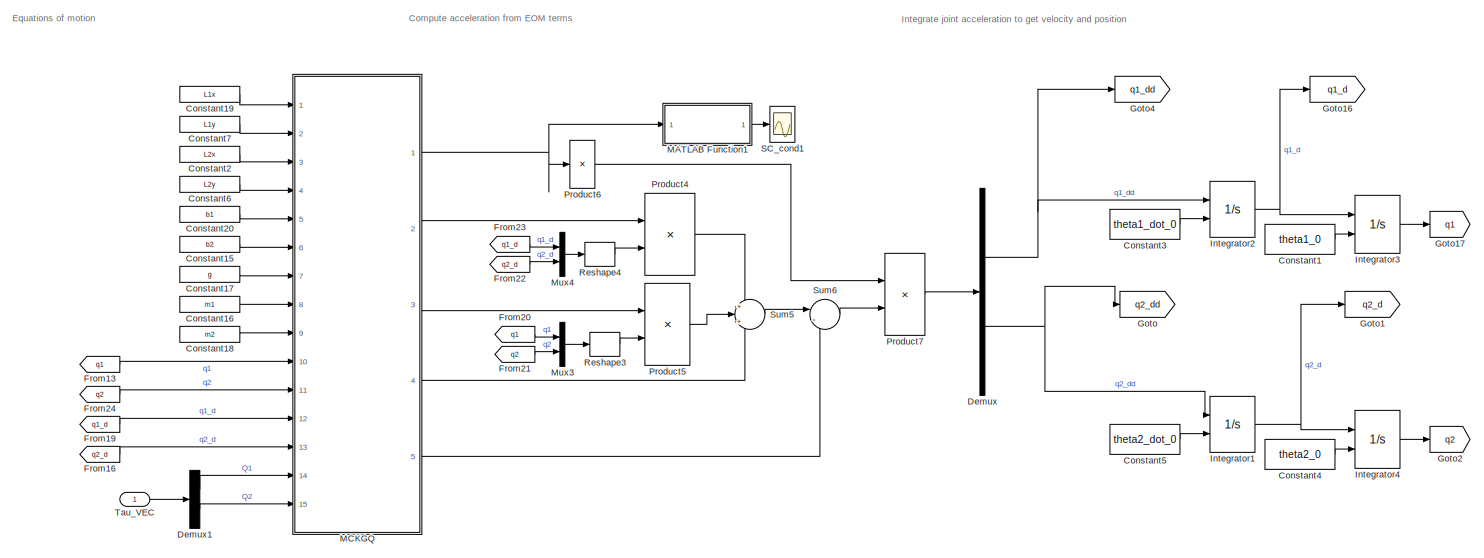
[diagram: Robot/SIMULINK_MODEL - part 1/2, most of the canvas]
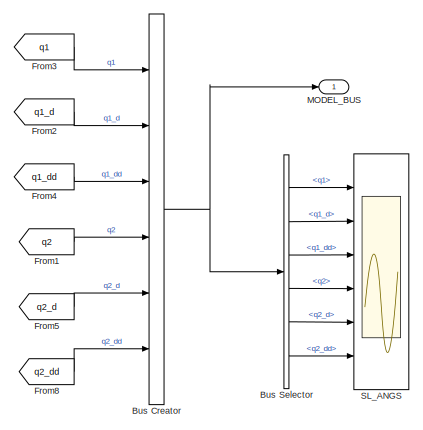
[diagram: Robot/SIMULINK_MODEL - part 2/2, middle right region]
BLOCK [SubSystem] Robot/SIMULINK_MODEL
  NameLocation = top
  Ports = [1, 1]
  RequestExecContextInheritance = off
  VariantControl = Choice
BLOCK [BusCreator] Robot/SIMULINK_MODEL/Bus Creator
  DisplayOption = bar
  InheritFromInputs = on
  Inputs = 6
  Ports = [6, 1]
BLOCK [BusSelector] Robot/SIMULINK_MODEL/Bus Selector
  OutputSignals = q1,q1_d,q1_dd,q2,q2_d,q2_dd
  Ports = [1, 6]
BLOCK [Constant] Robot/SIMULINK_MODEL/Constant1
  Value = theta1_0
BLOCK [Constant] Robot/SIMULINK_MODEL/Constant15
  Value = b2
BLOCK [Constant] Robot/SIMULINK_MODEL/Constant16
  Value = m1
BLOCK [Constant] Robot/SIMULINK_MODEL/Constant17
  Value = g
BLOCK [Constant] Robot/SIMULINK_MODEL/Constant18
  Value = m2
BLOCK [Constant] Robot/SIMULINK_MODEL/Constant19
  Value = L1x
BLOCK [Constant] Robot/SIMULINK_MODEL/Constant2
  Value = L2x
BLOCK [Constant] Robot/SIMULINK_MODEL/Constant20
  Value = b1
BLOCK [Constant] Robot/SIMULINK_MODEL/Constant3
  Value = theta1_dot_0
BLOCK [Constant] Robot/SIMULINK_MODEL/Constant4
  Value = theta2_0
BLOCK [Constant] Robot/SIMULINK_MODEL/Constant5
  Value = theta2_dot_0
BLOCK [Constant] Robot/SIMULINK_MODEL/Constant6
  Value = L2y
BLOCK [Constant] Robot/SIMULINK_MODEL/Constant7
  Value = L1y
BLOCK [Demux] Robot/SIMULINK_MODEL/Demux
  Outputs = 2
  Ports = [1, 2]
BLOCK [Demux] Robot/SIMULINK_MODEL/Demux1
  Outputs = 2
  Ports = [1, 2]
BLOCK [From] Robot/SIMULINK_MODEL/From1
  GotoTag = q2
BLOCK [From] Robot/SIMULINK_MODEL/From13
  GotoTag = q1
BLOCK [From] Robot/SIMULINK_MODEL/From16
  GotoTag = q2_d
BLOCK [From] Robot/SIMULINK_MODEL/From19
  GotoTag = q1_d
BLOCK [From] Robot/SIMULINK_MODEL/From2
  GotoTag = q1_d
BLOCK [From] Robot/SIMULINK_MODEL/From20
  GotoTag = q1
BLOCK [From] Robot/SIMULINK_MODEL/From21
  GotoTag = q2
BLOCK [From] Robot/SIMULINK_MODEL/From22
  GotoTag = q2_d
BLOCK [From] Robot/SIMULINK_MODEL/From23
  GotoTag = q1_d
BLOCK [From] Robot/SIMULINK_MODEL/From24
  GotoTag = q2
BLOCK [From] Robot/SIMULINK_MODEL/From3
  GotoTag = q1
BLOCK [From] Robot/SIMULINK_MODEL/From4
  GotoTag = q1_dd
BLOCK [From] Robot/SIMULINK_MODEL/From5
  GotoTag = q2_d
BLOCK [From] Robot/SIMULINK_MODEL/From8
  GotoTag = q2_dd
BLOCK [Goto] Robot/SIMULINK_MODEL/Goto
  GotoTag = q2_dd
BLOCK [Goto] Robot/SIMULINK_MODEL/Goto1
  GotoTag = q2_d
BLOCK [Goto] Robot/SIMULINK_MODEL/Goto16
  GotoTag = q1_d
BLOCK [Goto] Robot/SIMULINK_MODEL/Goto17
  GotoTag = q1
BLOCK [Goto] Robot/SIMULINK_MODEL/Goto2
  GotoTag = q2
BLOCK [Goto] Robot/SIMULINK_MODEL/Goto4
  GotoTag = q1_dd
BLOCK [Integrator] Robot/SIMULINK_MODEL/Integrator1
  InitialConditionSource = external
  Ports = [2, 1]
BLOCK [Integrator] Robot/SIMULINK_MODEL/Integrator2
  InitialConditionSource = external
  Ports = [2, 1]
BLOCK [Integrator] Robot/SIMULINK_MODEL/Integrator3
  InitialConditionSource = external
  Ports = [2, 1]
BLOCK [Integrator] Robot/SIMULINK_MODEL/Integrator4
  InitialConditionSource = external
  Ports = [2, 1]
BLOCK [SubSystem] Robot/SIMULINK_MODEL/MATLAB Function1
  ErrorFcn = Stateflow.Translate.translate
  PermitHierarchicalResolution = ExplicitOnly
  Ports = [1, 1]
  RequestExecContextInheritance = off
  SFBlockType = MATLAB Function
  TreatAsAtomicUnit = on
BLOCK [Demux] Robot/SIMULINK_MODEL/MATLAB Function1/ Demux 
  Outputs = 1
  Ports = [1, 1]
BLOCK [S-Function] Robot/SIMULINK_MODEL/MATLAB Function1/ SFunction 
  EnableBusSupport = on
  FunctionName = sf_sfun
  PortCounts = [1 2]
  Ports = [1, 2]
  SFcnIsStateOwnerBlock = off
  SFunctionDeploymentMode = off
  Tag = Stateflow S-Function 3
BLOCK [Terminator] Robot/SIMULINK_MODEL/MATLAB Function1/ Terminator 
BLOCK [Inport] Robot/SIMULINK_MODEL/MATLAB Function1/M
BLOCK [Outport] Robot/SIMULINK_MODEL/MATLAB Function1/the_cond
BLOCK [SubSystem] Robot/SIMULINK_MODEL/MCKGQ
  ErrorFcn = Stateflow.Translate.translate
  PermitHierarchicalResolution = ExplicitOnly
  Ports = [15, 5]
  RequestExecContextInheritance = off
  SFBlockType = MATLAB Function
  TreatAsAtomicUnit = on
BLOCK [Demux] Robot/SIMULINK_MODEL/MCKGQ/ Demux 
  Outputs = 1
  Ports = [1, 1]
BLOCK [S-Function] Robot/SIMULINK_MODEL/MCKGQ/ SFunction 
  EnableBusSupport = on
  FunctionName = sf_sfun
  PortCounts = [15 6]
  Ports = [15, 6]
  SFcnIsStateOwnerBlock = off
  SFunctionDeploymentMode = off
  Tag = Stateflow S-Function 2
BLOCK [Terminator] Robot/SIMULINK_MODEL/MCKGQ/ Terminator 
BLOCK [Outport] Robot/SIMULINK_MODEL/MCKGQ/C
  Port = 2
BLOCK [Outport] Robot/SIMULINK_MODEL/MCKGQ/G
  Port = 4
BLOCK [Outport] Robot/SIMULINK_MODEL/MCKGQ/K
  Port = 3
BLOCK [Inport] Robot/SIMULINK_MODEL/MCKGQ/L_1x
BLOCK [Inport] Robot/SIMULINK_MODEL/MCKGQ/L_1y
  Port = 2
BLOCK [Inport] Robot/SIMULINK_MODEL/MCKGQ/L_2x
  Port = 3
BLOCK [Inport] Robot/SIMULINK_MODEL/MCKGQ/L_2y
  Port = 4
BLOCK [Outport] Robot/SIMULINK_MODEL/MCKGQ/M
BLOCK [Outport] Robot/SIMULINK_MODEL/MCKGQ/Q
  Port = 5
BLOCK [Inport] Robot/SIMULINK_MODEL/MCKGQ/b1
  Port = 5
BLOCK [Inport] Robot/SIMULINK_MODEL/MCKGQ/b2
  Port = 6
BLOCK [Inport] Robot/SIMULINK_MODEL/MCKGQ/g
  Port = 7
BLOCK [Inport] Robot/SIMULINK_MODEL/MCKGQ/m1
  Port = 8
BLOCK [Inport] Robot/SIMULINK_MODEL/MCKGQ/m2
  Port = 9
BLOCK [Inport] Robot/SIMULINK_MODEL/MCKGQ/q1
  Port = 10
BLOCK [Inport] Robot/SIMULINK_MODEL/MCKGQ/q1_D
  Port = 12
BLOCK [Inport] Robot/SIMULINK_MODEL/MCKGQ/q2
  Port = 11
BLOCK [Inport] Robot/SIMULINK_MODEL/MCKGQ/q2_D
  Port = 13
BLOCK [Inport] Robot/SIMULINK_MODEL/MCKGQ/tau1
  Port = 14
BLOCK [Inport] Robot/SIMULINK_MODEL/MCKGQ/tau2
  Port = 15
BLOCK [Outport] Robot/SIMULINK_MODEL/MODEL_BUS
BLOCK [Mux] Robot/SIMULINK_MODEL/Mux3
  DisplayOption = bar
  Inputs = 2
  Ports = [2, 1]
BLOCK [Mux] Robot/SIMULINK_MODEL/Mux4
  DisplayOption = bar
  Inputs = 2
  Ports = [2, 1]
BLOCK [Product] Robot/SIMULINK_MODEL/Product4
  Multiplication = Matrix(*)
  Ports = [2, 1]
BLOCK [Product] Robot/SIMULINK_MODEL/Product5
  Multiplication = Matrix(*)
  Ports = [2, 1]
BLOCK [Product] Robot/SIMULINK_MODEL/Product6
  Inputs = /
  Multiplication = Matrix(*)
  Ports = [1, 1]
BLOCK [Product] Robot/SIMULINK_MODEL/Product7
  Multiplication = Matrix(*)
  Ports = [2, 1]
BLOCK [Reshape] Robot/SIMULINK_MODEL/Reshape3
  OutputDimensionality = Column vector (2-D)
  Ports = [1, 1]
BLOCK [Reshape] Robot/SIMULINK_MODEL/Reshape4
  OutputDimensionality = Column vector (2-D)
  Ports = [1, 1]
BLOCK [Scope] Robot/SIMULINK_MODEL/SC_cond1
  Floating = off
  NumInputPorts = 1
  Ports = [1]
  ScopeSpecificationString = Simulink.scopes.TimeScopeBlockCfg('CurrentConfiguration', extmgr.ConfigurationSet(extmgr.Configuration('Core','General UI',true),extmgr.Configuration('Core','Source UI',true),extmgr.Configuration('Sources','WiredSimulink',true,'DataLoggingVariableName','ScopeData1'),extmgr.Configuration('Visuals','Time Domain',true,'SerializedDisplays',{struct('MinYLimReal','43.00725','MaxYLimReal','44.76554','YLa...<+1399ch>
BLOCK [Scope] Robot/SIMULINK_MODEL/SL_ANGS
  Floating = off
  NumInputPorts = 6
  Ports = [6]
  ScopeSpecificationString = Simulink.scopes.TimeScopeBlockCfg('CurrentConfiguration', extmgr.ConfigurationSet(extmgr.Configuration('Core','General UI',true),extmgr.Configuration('Core','Source UI',true),extmgr.Configuration('Sources','WiredSimulink',true,'DataLoggingVariableName','ScopeData1'),extmgr.Configuration('Visuals','Time Domain',true,'SerializedDisplays',{struct('MinYLimReal','-0.36376','MaxYLimReal','0.04042','YLab...<+4813ch>
BLOCK [Sum] Robot/SIMULINK_MODEL/Sum5
  Inputs = +|+|+
  Ports = [3, 1]
BLOCK [Sum] Robot/SIMULINK_MODEL/Sum6
  Inputs = |-+
  Ports = [2, 1]
BLOCK [Inport] Robot/SIMULINK_MODEL/Tau_VEC
BLOCK [Inport] Robot/Tau_VEC
BLOCK [Scope] Scope
  Floating = off
  IOType = viewer
  NumInputPorts = 1
  Ports = []
  ScopeSpecificationString = Simulink.scopes.TimeScopeBlockCfg('CurrentConfiguration', extmgr.ConfigurationSet(extmgr.Configuration('Core','General UI',true),extmgr.Configuration('Core','Source UI',true),extmgr.Configuration('Sources','WiredSimulink',true,'DataLoggingVariableName','ScopeData1'),extmgr.Configuration('Visuals','Time Domain',true,'SerializedDisplays',{struct('MinYLimReal','-3.23725','MaxYLimReal','5.3541','YLabe...<+1399ch>
BLOCK [Scope] Scope1
  Floating = off
  NumInputPorts = 2
  Ports = [2]
  ScopeSpecificationString = Simulink.scopes.TimeScopeBlockCfg('CurrentConfiguration', extmgr.ConfigurationSet(extmgr.Configuration('Core','General UI',true,'ShowStatusbar',false),extmgr.Configuration('Core','Source UI',true),extmgr.Configuration('Sources','WiredSimulink',true,'DataLoggingVariableName','ScopeData2'),extmgr.Configuration('Visuals','Time Domain',true,'SerializedDisplays',{struct('MinYLimReal','-73.84405','MaxYL...<+2062ch>
BLOCK [Scope] Scope2
  Floating = off
  NumInputPorts = 2
  Ports = [2]
  ScopeSpecificationString = Simulink.scopes.TimeScopeBlockCfg('CurrentConfiguration', extmgr.ConfigurationSet(extmgr.Configuration('Core','General UI',true),extmgr.Configuration('Core','Source UI',true),extmgr.Configuration('Sources','WiredSimulink',true,'DataLoggingVariableName','ScopeData3'),extmgr.Configuration('Visuals','Time Domain',true,'SerializedDisplays',{struct('MinYLimReal','-129.04667','MaxYLimReal','215.34054','...<+2058ch>
BLOCK [Scope] Scope3
  Floating = off
  NumInputPorts = 1
  Ports = [1]
  ScopeSpecificationString = Simulink.scopes.TimeScopeBlockCfg('CurrentConfiguration', extmgr.ConfigurationSet(extmgr.Configuration('Core','General UI',true),extmgr.Configuration('Core','Source UI',true),extmgr.Configuration('Sources','WiredSimulink',true,'DataLoggingVariableName','ScopeData4'),extmgr.Configuration('Visuals','Time Domain',true,'SerializedDisplays',{struct('MinYLimReal','-9.72208','MaxYLimReal','24.90446','YLa...<+1773ch>
BLOCK [SubSystem] control effort
  Ports = [2, 2]
  RequestExecContextInheritance = off
BLOCK [Inport] control effort/In1
BLOCK [Inport] control effort/In2
  Port = 2
BLOCK [Integrator] control effort/Integrator
  Ports = [1, 1]
BLOCK [Integrator] control effort/Integrator1
  Ports = [1, 1]
BLOCK [Math] control effort/Square
  Operator = square
  Ports = [1, 1]
BLOCK [Math] control effort/Square1
  Operator = square
  Ports = [1, 1]
BLOCK [Outport] control effort/u1_effort
BLOCK [Outport] control effort/u2_effort
  Port = 2
ANNOTATION Commands/Sinewave command: Note: Using derivative blocks without limiters can result in spikes in the signal. Better to manually create the derivative of the signal
ANNOTATION Commands/zero command: Note: Using derivative blocks without limiters can result in spikes in the signal. Better to manually create the derivative of the signal
ANNOTATION Controller: 1) Add Subsystem or Model blocks as valid variant choices. 2) You cannot connect blocks at this level. At simulation, connectivity is automatically determined, based on the active variant and port name matching.
ANNOTATION Controller/  LQR Control: Pole Placement Control $u=K(q_d-q)$ K is created by place(A,B,p) where p are the desired poles
ANNOTATION Controller/ Pole Placement Control: Pole Placement Control $u=K(q_d-q)$ K is created by place(A,B,p) where p are the desired poles
ANNOTATION Controller/Incremental sliding mode Control: SM Control $u=K(q_d-q)+d+K_ssat(S,\phi) \\ sat(S,\phi) = sign(S) if |S|>\phi \ else \ \frac{S}{phi}$
ANNOTATION Controller/Inverse Dynamics control : Linear Control (PD+feedforward)
ANNOTATION Controller/Inverse Dynamics control : Nonlinear Compensation from inverse dynamics
ANNOTATION Controller/LQR+D Control: Pole Placement Control with disturbance term $u=K(q_d-q)+d$ K is created by place(A,B,p) where p are the desired poles
ANNOTATION Controller/PD Control: PD Joint Control
ANNOTATION Controller/PD-feedforward-gravity Control: Feedforward Gravity Compensation
ANNOTATION Controller/PD-feedforward-gravity Control: PD control+Acceleration feedforward
ANNOTATION Controller/PD-gravity Control : Feedforward Gravity Compensation
ANNOTATION Controller/PD-gravity Control : PD control
ANNOTATION Controller/PID Control: PID Joint Control
ANNOTATION Controller/Pole Placement+D Control: Pole Placement Control with disturbance term $u=K(q_d-q)+d$ K is created by place(A,B,p) where p are the desired poles
ANNOTATION Controller/Robust control : Linear Control (PD+feedforward)
ANNOTATION Controller/Robust control : Nonlinear Compensation from inverse dynamics
ANNOTATION Robot: 1) Add Subsystem or Model blocks as valid variant choices. 2) You cannot connect blocks at this level. At simulation, connectivity is automatically determined, based on the active variant and port name matching.
ANNOTATION Robot/SIMULINK_MODEL: Compute acceleration from EOM terms
ANNOTATION Robot/SIMULINK_MODEL: Equations of motion
ANNOTATION Robot/SIMULINK_MODEL: Integrate joint acceleration to get velocity and position
LINE Bus Selector16:1 -> Radians to Degrees2:1
LINE Bus Selector17:1 -> Radians to Degrees3:1
LINE Bus Selector18:1 -> Radians to Degrees6:1
LINE Bus Selector19:1 -> Radians to Degrees7:1
LINE Bus Selector4:1 -> Controller:2
LINE Bus Selector5:1 -> Radians to Degrees:1
LINE Bus Selector6:1 -> Radians to Degrees1:1
LINE Bus Selector7:1 -> Radians to Degrees4:1
LINE Bus Selector8:1 -> Radians to Degrees5:1
LINE Commands/Sinewave command/Bus Creator:1 -> Commands/Sinewave command/CMD:1
LINE Commands/Sinewave command/Derivative1:1 -> Commands/Sinewave command/Bus Creator:4
LINE Commands/Sinewave command/Derivative:1 -> Commands/Sinewave command/Bus Creator:3
LINE Commands/Sinewave command/Gain1:1 -> Commands/Sinewave command/Bus Creator:2
LINE Commands/Sinewave command/Gain:1 -> Commands/Sinewave command/Bus Creator:1
NET Commands/Sinewave command/Sine Wave Function1:1 -> Commands/Sinewave command/Bus Creator:6, Commands/Sinewave command/Derivative1:1, Commands/Sinewave command/Gain1:1
NET Commands/Sinewave command/Sine Wave Function:1 -> Commands/Sinewave command/Bus Creator:5, Commands/Sinewave command/Derivative:1, Commands/Sinewave command/Gain:1
LINE Commands/Step command/Bus Creator:1 -> Commands/Step command/Zero-Order Hold:1
LINE Commands/Step command/Constant1:1 -> Commands/Step command/Bus Creator:2
LINE Commands/Step command/Constant:1 -> Commands/Step command/Bus Creator:1
LINE Commands/Step command/Derivative1:1 -> Commands/Step command/First-Order Filter2:1
NET Commands/Step command/Derivative:1 -> Commands/Step command/First-Order Filter3:1, Commands/Step command/Scope:1
NET Commands/Step command/First-Order Filter1:1 -> Commands/Step command/Bus Creator:5, Commands/Step command/Derivative:1
LINE Commands/Step command/First-Order Filter2:1 -> Commands/Step command/Bus Creator:4
LINE Commands/Step command/First-Order Filter3:1 -> Commands/Step command/Bus Creator:3
NET Commands/Step command/First-Order Filter:1 -> Commands/Step command/Bus Creator:6, Commands/Step command/Derivative1:1
LINE Commands/Step command/Joint commands:1 -> Commands/Step command/First-Order Filter1:1
LINE Commands/Step command/Joint commands:2 -> Commands/Step command/First-Order Filter:1
NET Commands/Step command/Zero-Order Hold:1 -> Commands/Step command/CMD:1, Commands/Step command/Scope1:1
LINE Commands/Trapezoidal velocity/Bus Creator:1 -> Commands/Trapezoidal velocity/CMD:1
LINE Commands/Trapezoidal velocity/Derivative2:1 -> Commands/Trapezoidal velocity/Bus Creator:2
LINE Commands/Trapezoidal velocity/Derivative:1 -> Commands/Trapezoidal velocity/Bus Creator:1
NET Commands/Trapezoidal velocity/Integrator1:1 -> Commands/Trapezoidal velocity/Bus Creator:5, Commands/Trapezoidal velocity/Mux:1
NET Commands/Trapezoidal velocity/Integrator:1 -> Commands/Trapezoidal velocity/Bus Creator:6, Commands/Trapezoidal velocity/Mux:2
NET Commands/Trapezoidal velocity/Joint commands:1 -> Commands/Trapezoidal velocity/Bus Creator:3, Commands/Trapezoidal velocity/Derivative:1, Commands/Trapezoidal velocity/Integrator1:1
NET Commands/Trapezoidal velocity/Joint commands:2 -> Commands/Trapezoidal velocity/Bus Creator:4, Commands/Trapezoidal velocity/Derivative2:1, Commands/Trapezoidal velocity/Integrator:1
LINE Commands/Trapezoidal velocity/Mux:1 -> Commands/Trapezoidal velocity/Scope:1
LINE Commands/zero command/Bus Creator:1 -> Commands/zero command/CMD:1
LINE Commands/zero command/Constant1:1 -> Commands/zero command/Bus Creator:2
LINE Commands/zero command/Constant2:1 -> Commands/zero command/Bus Creator:3
LINE Commands/zero command/Constant3:1 -> Commands/zero command/Bus Creator:4
LINE Commands/zero command/Constant4:1 -> Commands/zero command/Bus Creator:5
LINE Commands/zero command/Constant5:1 -> Commands/zero command/Bus Creator:6
LINE Commands/zero command/Constant:1 -> Commands/zero command/Bus Creator:1
NET Commands:1 -> Controller:1, Goto9:1
LINE Controller/  LQR Control/Bus Selector4:1 -> Controller/  LQR Control/Mux:1
LINE Controller/  LQR Control/Bus Selector4:2 -> Controller/  LQR Control/Mux:2
LINE Controller/  LQR Control/Bus Selector4:3 -> Controller/  LQR Control/Mux:3
LINE Controller/  LQR Control/Bus Selector4:4 -> Controller/  LQR Control/Mux:4
LINE Controller/  LQR Control/Bus Selector5:1 -> Controller/  LQR Control/Mux1:1
LINE Controller/  LQR Control/Bus Selector5:2 -> Controller/  LQR Control/Mux1:2
LINE Controller/  LQR Control/Bus Selector5:3 -> Controller/  LQR Control/Mux1:3
LINE Controller/  LQR Control/Bus Selector5:4 -> Controller/  LQR Control/Mux1:4
LINE Controller/  LQR Control/Constant1:1 -> Controller/  LQR Control/Matrix Multiply:1
LINE Controller/  LQR Control/From3:1 -> Controller/  LQR Control/Bus Selector4:1
LINE Controller/  LQR Control/From4:1 -> Controller/  LQR Control/Bus Selector5:1
LINE Controller/  LQR Control/Matrix Multiply:1 -> Controller/  LQR Control/tau:1
LINE Controller/  LQR Control/Mux1:1 -> Controller/  LQR Control/Reshape1:1
LINE Controller/  LQR Control/Mux:1 -> Controller/  LQR Control/Reshape2:1
LINE Controller/  LQR Control/Reshape1:1 -> Controller/  LQR Control/Sum3:1
LINE Controller/  LQR Control/Reshape2:1 -> Controller/  LQR Control/Sum3:2
LINE Controller/  LQR Control/Sum3:1 -> Controller/  LQR Control/Matrix Multiply:2
LINE Controller/  LQR Control/plant_bus:1 -> Controller/  LQR Control/Goto:1
LINE Controller/  LQR Control/q_cmd_bus:1 -> Controller/  LQR Control/Goto1:1
LINE Controller/ Pole Placement Control/Bus Selector4:1 -> Controller/ Pole Placement Control/Mux:1
LINE Controller/ Pole Placement Control/Bus Selector4:2 -> Controller/ Pole Placement Control/Mux:2
LINE Controller/ Pole Placement Control/Bus Selector4:3 -> Controller/ Pole Placement Control/Mux:3
LINE Controller/ Pole Placement Control/Bus Selector4:4 -> Controller/ Pole Placement Control/Mux:4
LINE Controller/ Pole Placement Control/Bus Selector5:1 -> Controller/ Pole Placement Control/Mux1:1
LINE Controller/ Pole Placement Control/Bus Selector5:2 -> Controller/ Pole Placement Control/Mux1:2
LINE Controller/ Pole Placement Control/Bus Selector5:3 -> Controller/ Pole Placement Control/Mux1:3
LINE Controller/ Pole Placement Control/Bus Selector5:4 -> Controller/ Pole Placement Control/Mux1:4
LINE Controller/ Pole Placement Control/Constant1:1 -> Controller/ Pole Placement Control/Matrix Multiply:1
LINE Controller/ Pole Placement Control/From3:1 -> Controller/ Pole Placement Control/Bus Selector4:1
LINE Controller/ Pole Placement Control/From4:1 -> Controller/ Pole Placement Control/Bus Selector5:1
LINE Controller/ Pole Placement Control/Matrix Multiply:1 -> Controller/ Pole Placement Control/tau:1
LINE Controller/ Pole Placement Control/Mux1:1 -> Controller/ Pole Placement Control/Reshape1:1
LINE Controller/ Pole Placement Control/Mux:1 -> Controller/ Pole Placement Control/Reshape2:1
LINE Controller/ Pole Placement Control/Reshape1:1 -> Controller/ Pole Placement Control/Sum3:1
LINE Controller/ Pole Placement Control/Reshape2:1 -> Controller/ Pole Placement Control/Sum3:2
LINE Controller/ Pole Placement Control/Sum3:1 -> Controller/ Pole Placement Control/Matrix Multiply:2
LINE Controller/ Pole Placement Control/plant_bus:1 -> Controller/ Pole Placement Control/Goto:1
LINE Controller/ Pole Placement Control/q_cmd_bus:1 -> Controller/ Pole Placement Control/Goto1:1
LINE Controller/Incremental sliding mode Control/Bandwidth (lambda):1 -> Controller/Incremental sliding mode Control/Sum:1
LINE Controller/Incremental sliding mode Control/Bus Selector10:1 -> Controller/Incremental sliding mode Control/Minus1:2
LINE Controller/Incremental sliding mode Control/Bus Selector11:1 -> Controller/Incremental sliding mode Control/Minus3:2
LINE Controller/Incremental sliding mode Control/Bus Selector12:1 -> Controller/Incremental sliding mode Control/Minus2:1
LINE Controller/Incremental sliding mode Control/Bus Selector13:1 -> Controller/Incremental sliding mode Control/Minus2:2
LINE Controller/Incremental sliding mode Control/Bus Selector14:1 -> Controller/Incremental sliding mode Control/Minus3:1
LINE Controller/Incremental sliding mode Control/Bus Selector1:1 -> Controller/Incremental sliding mode Control/Minus:1
LINE Controller/Incremental sliding mode Control/Bus Selector2:1 -> Controller/Incremental sliding mode Control/Minus:2
LINE Controller/Incremental sliding mode Control/Bus Selector4:1 -> Controller/Incremental sliding mode Control/XY Graph:1
LINE Controller/Incremental sliding mode Control/Bus Selector4:2 -> Controller/Incremental sliding mode Control/XY Graph:2
LINE Controller/Incremental sliding mode Control/Bus Selector4:3 -> Controller/Incremental sliding mode Control/XY Graph1:1
LINE Controller/Incremental sliding mode Control/Bus Selector4:4 -> Controller/Incremental sliding mode Control/XY Graph1:2
LINE Controller/Incremental sliding mode Control/Bus Selector9:1 -> Controller/Incremental sliding mode Control/Minus1:1
LINE Controller/Incremental sliding mode Control/From10:1 -> Controller/Incremental sliding mode Control/Bus Selector13:1
LINE Controller/Incremental sliding mode Control/From11:1 -> Controller/Incremental sliding mode Control/Bus Selector14:1
LINE Controller/Incremental sliding mode Control/From12:1 -> Controller/Incremental sliding mode Control/Bus Selector11:1
LINE Controller/Incremental sliding mode Control/From1:1 -> Controller/Incremental sliding mode Control/Bus Selector2:1
LINE Controller/Incremental sliding mode Control/From2:1 -> Controller/Incremental sliding mode Control/Bus Selector9:1
LINE Controller/Incremental sliding mode Control/From4:1 -> Controller/Incremental sliding mode Control/Bus Selector1:1
LINE Controller/Incremental sliding mode Control/From7:1 -> Controller/Incremental sliding mode Control/Bus Selector4:1
LINE Controller/Incremental sliding mode Control/From8:1 -> Controller/Incremental sliding mode Control/Bus Selector10:1
LINE Controller/Incremental sliding mode Control/From9:1 -> Controller/Incremental sliding mode Control/Bus Selector12:1
LINE Controller/Incremental sliding mode Control/MATLAB Function:1 -> Controller/Incremental sliding mode Control/Switching term gain:1
LINE Controller/Incremental sliding mode Control/Minus1:1 -> Controller/Incremental sliding mode Control/Mux3:2
LINE Controller/Incremental sliding mode Control/Minus2:1 -> Controller/Incremental sliding mode Control/Mux2:1
LINE Controller/Incremental sliding mode Control/Minus3:1 -> Controller/Incremental sliding mode Control/Mux2:2
LINE Controller/Incremental sliding mode Control/Minus:1 -> Controller/Incremental sliding mode Control/Mux3:1
LINE Controller/Incremental sliding mode Control/Mux2:1 -> Controller/Incremental sliding mode Control/Sum:2
LINE Controller/Incremental sliding mode Control/Mux3:1 -> Controller/Incremental sliding mode Control/Bandwidth (lambda):1
LINE Controller/Incremental sliding mode Control/Sum5:1 -> Controller/Incremental sliding mode Control/tau:1
LINE Controller/Incremental sliding mode Control/Sum:1 -> Controller/Incremental sliding mode Control/MATLAB Function:1
LINE Controller/Incremental sliding mode Control/Switching term gain:1 -> Controller/Incremental sliding mode Control/Sum5:2
LINE Controller/Incremental sliding mode Control/boundray layer:1 -> Controller/Incremental sliding mode Control/MATLAB Function:2
LINE Controller/Incremental sliding mode Control/plant_bus:1 -> Controller/Incremental sliding mode Control/Goto:1
LINE Controller/Incremental sliding mode Control/q_cmd_bus:1 -> Controller/Incremental sliding mode Control/Goto1:1
LINE Controller/Inverse Dynamics control /Bus Selector1:1 -> Controller/Inverse Dynamics control /C_q1:2
LINE Controller/Inverse Dynamics control /Bus Selector2:1 -> Controller/Inverse Dynamics control /C_q2:2
LINE Controller/Inverse Dynamics control /Bus Selector3:1 -> Controller/Inverse Dynamics control /C_q2:1
LINE Controller/Inverse Dynamics control /Bus Selector4:1 -> Controller/Inverse Dynamics control /Mux2:1
LINE Controller/Inverse Dynamics control /Bus Selector4:2 -> Controller/Inverse Dynamics control /Mux2:2
LINE Controller/Inverse Dynamics control /Bus Selector4:3 -> Controller/Inverse Dynamics control /Mux7:1
LINE Controller/Inverse Dynamics control /Bus Selector4:4 -> Controller/Inverse Dynamics control /Mux7:2
LINE Controller/Inverse Dynamics control /Bus Selector5:1 -> Controller/Inverse Dynamics control /MCKGQ:10
LINE Controller/Inverse Dynamics control /Bus Selector5:2 -> Controller/Inverse Dynamics control /MCKGQ:11
LINE Controller/Inverse Dynamics control /Bus Selector5:3 -> Controller/Inverse Dynamics control /MCKGQ:12
LINE Controller/Inverse Dynamics control /Bus Selector5:4 -> Controller/Inverse Dynamics control /MCKGQ:13
LINE Controller/Inverse Dynamics control /Bus Selector7:1 -> Controller/Inverse Dynamics control /Sum:1
LINE Controller/Inverse Dynamics control /Bus Selector7:2 -> Controller/Inverse Dynamics control /Sum1:1
LINE Controller/Inverse Dynamics control /Bus Selector:1 -> Controller/Inverse Dynamics control /C_q1:1
LINE Controller/Inverse Dynamics control /C_q1:1 -> Controller/Inverse Dynamics control /Sum:2
LINE Controller/Inverse Dynamics control /C_q2:1 -> Controller/Inverse Dynamics control /Sum1:2
LINE Controller/Inverse Dynamics control /Constant15:1 -> Controller/Inverse Dynamics control /MCKGQ:6
LINE Controller/Inverse Dynamics control /Constant16:1 -> Controller/Inverse Dynamics control /MCKGQ:8
LINE Controller/Inverse Dynamics control /Constant17:1 -> Controller/Inverse Dynamics control /MCKGQ:7
LINE Controller/Inverse Dynamics control /Constant18:1 -> Controller/Inverse Dynamics control /MCKGQ:9
LINE Controller/Inverse Dynamics control /Constant19:1 -> Controller/Inverse Dynamics control /MCKGQ:1
LINE Controller/Inverse Dynamics control /Constant20:1 -> Controller/Inverse Dynamics control /MCKGQ:5
LINE Controller/Inverse Dynamics control /Constant2:1 -> Controller/Inverse Dynamics control /MCKGQ:3
LINE Controller/Inverse Dynamics control /Constant6:1 -> Controller/Inverse Dynamics control /MCKGQ:4
LINE Controller/Inverse Dynamics control /Constant7:1 -> Controller/Inverse Dynamics control /MCKGQ:2
NET Controller/Inverse Dynamics control /Constant:1 -> Controller/Inverse Dynamics control /MCKGQ:14, Controller/Inverse Dynamics control /MCKGQ:15
LINE Controller/Inverse Dynamics control /FeedForward terms/C:1 -> Controller/Inverse Dynamics control /FeedForward terms/Product3:1
LINE Controller/Inverse Dynamics control /FeedForward terms/F:1 -> Controller/Inverse Dynamics control /FeedForward terms/Terminator:1
NET Controller/Inverse Dynamics control /FeedForward terms/G:1 -> Controller/Inverse Dynamics control /FeedForward terms/Scope:1, Controller/Inverse Dynamics control /FeedForward terms/Sum:4
LINE Controller/Inverse Dynamics control /FeedForward terms/K:1 -> Controller/Inverse Dynamics control /FeedForward terms/Product:1
LINE Controller/Inverse Dynamics control /FeedForward terms/M:1 -> Controller/Inverse Dynamics control /FeedForward terms/Product2:1
LINE Controller/Inverse Dynamics control /FeedForward terms/Product2:1 -> Controller/Inverse Dynamics control /FeedForward terms/Sum:1
LINE Controller/Inverse Dynamics control /FeedForward terms/Product3:1 -> Controller/Inverse Dynamics control /FeedForward terms/Sum:2
LINE Controller/Inverse Dynamics control /FeedForward terms/Product:1 -> Controller/Inverse Dynamics control /FeedForward terms/Sum:3
LINE Controller/Inverse Dynamics control /FeedForward terms/Sum:1 -> Controller/Inverse Dynamics control /FeedForward terms/Q:1
LINE Controller/Inverse Dynamics control /FeedForward terms/q:1 -> Controller/Inverse Dynamics control /FeedForward terms/Product:2
LINE Controller/Inverse Dynamics control /FeedForward terms/q_d:1 -> Controller/Inverse Dynamics control /FeedForward terms/Product3:2
LINE Controller/Inverse Dynamics control /FeedForward terms/q_dd:1 -> Controller/Inverse Dynamics control /FeedForward terms/Product2:2
LINE Controller/Inverse Dynamics control /FeedForward terms:1 -> Controller/Inverse Dynamics control /tau:1
NET Controller/Inverse Dynamics control /From1:1 -> Controller/Inverse Dynamics control /Bus Selector1:1, Controller/Inverse Dynamics control /Bus Selector2:1
NET Controller/Inverse Dynamics control /From2:1 -> Controller/Inverse Dynamics control /Bus Selector3:1, Controller/Inverse Dynamics control /Bus Selector7:1, Controller/Inverse Dynamics control /Bus Selector:1
LINE Controller/Inverse Dynamics control /From3:1 -> Controller/Inverse Dynamics control /Bus Selector4:1
LINE Controller/Inverse Dynamics control /From5:1 -> Controller/Inverse Dynamics control /Bus Selector5:1
LINE Controller/Inverse Dynamics control /MCKGQ:1 -> Controller/Inverse Dynamics control /FeedForward terms:7
LINE Controller/Inverse Dynamics control /MCKGQ:2 -> Controller/Inverse Dynamics control /FeedForward terms:1
LINE Controller/Inverse Dynamics control /MCKGQ:3 -> Controller/Inverse Dynamics control /FeedForward terms:2
LINE Controller/Inverse Dynamics control /MCKGQ:4 -> Controller/Inverse Dynamics control /FeedForward terms:3
LINE Controller/Inverse Dynamics control /MCKGQ:5 -> Controller/Inverse Dynamics control /FeedForward terms:8
LINE Controller/Inverse Dynamics control /Mux2:1 -> Controller/Inverse Dynamics control /Reshape2:1
LINE Controller/Inverse Dynamics control /Mux5:1 -> Controller/Inverse Dynamics control /Reshape1:1
LINE Controller/Inverse Dynamics control /Mux7:1 -> Controller/Inverse Dynamics control /Reshape5:1
LINE Controller/Inverse Dynamics control /Reshape1:1 -> Controller/Inverse Dynamics control /FeedForward terms:6
LINE Controller/Inverse Dynamics control /Reshape2:1 -> Controller/Inverse Dynamics control /FeedForward terms:4
LINE Controller/Inverse Dynamics control /Reshape5:1 -> Controller/Inverse Dynamics control /FeedForward terms:5
LINE Controller/Inverse Dynamics control /Sum1:1 -> Controller/Inverse Dynamics control /Mux5:2
LINE Controller/Inverse Dynamics control /Sum:1 -> Controller/Inverse Dynamics control /Mux5:1
LINE Controller/Inverse Dynamics control /plant_bus:1 -> Controller/Inverse Dynamics control /Goto:1
LINE Controller/Inverse Dynamics control /q_cmd_bus:1 -> Controller/Inverse Dynamics control /Goto1:1
LINE Controller/LQR+D Control/Bus Selector6:1 -> Controller/LQR+D Control/Mux4:1
LINE Controller/LQR+D Control/Bus Selector6:2 -> Controller/LQR+D Control/Mux4:2
LINE Controller/LQR+D Control/Bus Selector6:3 -> Controller/LQR+D Control/Mux4:3
LINE Controller/LQR+D Control/Bus Selector6:4 -> Controller/LQR+D Control/Mux4:4
LINE Controller/LQR+D Control/Bus Selector7:1 -> Controller/LQR+D Control/Mux5:1
LINE Controller/LQR+D Control/Bus Selector7:2 -> Controller/LQR+D Control/Mux5:2
LINE Controller/LQR+D Control/Bus Selector7:3 -> Controller/LQR+D Control/Mux5:3
LINE Controller/LQR+D Control/Bus Selector7:4 -> Controller/LQR+D Control/Mux5:4
LINE Controller/LQR+D Control/Bus Selector8:1 -> Controller/LQR+D Control/disturbance_terms:6
LINE Controller/LQR+D Control/Bus Selector8:2 -> Controller/LQR+D Control/disturbance_terms:7
LINE Controller/LQR+D Control/Bus Selector8:3 -> Controller/LQR+D Control/disturbance_terms:8
LINE Controller/LQR+D Control/Bus Selector8:4 -> Controller/LQR+D Control/disturbance_terms:9
LINE Controller/LQR+D Control/Bus Selector8:5 -> Controller/LQR+D Control/disturbance_terms:10
LINE Controller/LQR+D Control/Bus Selector8:6 -> Controller/LQR+D Control/disturbance_terms:11
LINE Controller/LQR+D Control/Constant13:1 -> Controller/LQR+D Control/Matrix Multiply1:1
LINE Controller/LQR+D Control/Constant3:1 -> Controller/LQR+D Control/disturbance_terms:4
LINE Controller/LQR+D Control/Constant4:1 -> Controller/LQR+D Control/disturbance_terms:3
LINE Controller/LQR+D Control/Constant5:1 -> Controller/LQR+D Control/disturbance_terms:5
LINE Controller/LQR+D Control/Constant8:1 -> Controller/LQR+D Control/disturbance_terms:1
LINE Controller/LQR+D Control/Constant9:1 -> Controller/LQR+D Control/disturbance_terms:2
LINE Controller/LQR+D Control/From5:1 -> Controller/LQR+D Control/Bus Selector6:1
LINE Controller/LQR+D Control/From6:1 -> Controller/LQR+D Control/Bus Selector7:1
LINE Controller/LQR+D Control/From7:1 -> Controller/LQR+D Control/Bus Selector8:1
LINE Controller/LQR+D Control/Matrix Multiply1:1 -> Controller/LQR+D Control/Sum5:1
LINE Controller/LQR+D Control/Mux4:1 -> Controller/LQR+D Control/Reshape4:1
LINE Controller/LQR+D Control/Mux5:1 -> Controller/LQR+D Control/Reshape3:1
LINE Controller/LQR+D Control/Reshape3:1 -> Controller/LQR+D Control/Sum4:1
LINE Controller/LQR+D Control/Reshape4:1 -> Controller/LQR+D Control/Sum4:2
LINE Controller/LQR+D Control/Sum4:1 -> Controller/LQR+D Control/Matrix Multiply1:2
LINE Controller/LQR+D Control/Sum5:1 -> Controller/LQR+D Control/tau:1
LINE Controller/LQR+D Control/disturbance_terms:1 -> Controller/LQR+D Control/Sum5:2
LINE Controller/LQR+D Control/plant_bus:1 -> Controller/LQR+D Control/Goto2:1
LINE Controller/LQR+D Control/q_cmd_bus:1 -> Controller/LQR+D Control/Goto3:1
LINE Controller/PD Control/Bus Selector1:1 -> Controller/PD Control/C_q1:2
LINE Controller/PD Control/Bus Selector2:1 -> Controller/PD Control/C_q2:2
LINE Controller/PD Control/Bus Selector3:1 -> Controller/PD Control/C_q2:1
LINE Controller/PD Control/Bus Selector:1 -> Controller/PD Control/C_q1:1
LINE Controller/PD Control/C_q1:1 -> Controller/PD Control/Mux2:1
LINE Controller/PD Control/C_q2:1 -> Controller/PD Control/Mux2:2
NET Controller/PD Control/From1:1 -> Controller/PD Control/Bus Selector1:1, Controller/PD Control/Bus Selector2:1
NET Controller/PD Control/From2:1 -> Controller/PD Control/Bus Selector3:1, Controller/PD Control/Bus Selector:1
LINE Controller/PD Control/Mux2:1 -> Controller/PD Control/tau:1
LINE Controller/PD Control/plant_bus:1 -> Controller/PD Control/Goto:1
LINE Controller/PD Control/q_cmd_bus:1 -> Controller/PD Control/Goto1:1
LINE Controller/PD-feedforward-gravity Control/Bus Selector1:1 -> Controller/PD-feedforward-gravity Control/C_q1:2
LINE Controller/PD-feedforward-gravity Control/Bus Selector2:1 -> Controller/PD-feedforward-gravity Control/C_q2:2
LINE Controller/PD-feedforward-gravity Control/Bus Selector3:1 -> Controller/PD-feedforward-gravity Control/C_q2:1
LINE Controller/PD-feedforward-gravity Control/Bus Selector5:1 -> Controller/PD-feedforward-gravity Control/Gravity compensation:6
LINE Controller/PD-feedforward-gravity Control/Bus Selector5:2 -> Controller/PD-feedforward-gravity Control/Gravity compensation:7
LINE Controller/PD-feedforward-gravity Control/Bus Selector7:1 -> Controller/PD-feedforward-gravity Control/Sum3:1
LINE Controller/PD-feedforward-gravity Control/Bus Selector7:2 -> Controller/PD-feedforward-gravity Control/Sum2:1
LINE Controller/PD-feedforward-gravity Control/Bus Selector:1 -> Controller/PD-feedforward-gravity Control/C_q1:1
LINE Controller/PD-feedforward-gravity Control/C_q1:1 -> Controller/PD-feedforward-gravity Control/Sum3:2
LINE Controller/PD-feedforward-gravity Control/C_q2:1 -> Controller/PD-feedforward-gravity Control/Sum2:2
LINE Controller/PD-feedforward-gravity Control/Constant16:1 -> Controller/PD-feedforward-gravity Control/Gravity compensation:4
LINE Controller/PD-feedforward-gravity Control/Constant17:1 -> Controller/PD-feedforward-gravity Control/Gravity compensation:3
LINE Controller/PD-feedforward-gravity Control/Constant18:1 -> Controller/PD-feedforward-gravity Control/Gravity compensation:5
LINE Controller/PD-feedforward-gravity Control/Constant19:1 -> Controller/PD-feedforward-gravity Control/Gravity compensation:1
LINE Controller/PD-feedforward-gravity Control/Constant2:1 -> Controller/PD-feedforward-gravity Control/Gravity compensation:2
LINE Controller/PD-feedforward-gravity Control/Demux:1 -> Controller/PD-feedforward-gravity Control/Sum:1
LINE Controller/PD-feedforward-gravity Control/Demux:2 -> Controller/PD-feedforward-gravity Control/Sum1:1
NET Controller/PD-feedforward-gravity Control/From1:1 -> Controller/PD-feedforward-gravity Control/Bus Selector1:1, Controller/PD-feedforward-gravity Control/Bus Selector2:1
NET Controller/PD-feedforward-gravity Control/From2:1 -> Controller/PD-feedforward-gravity Control/Bus Selector3:1, Controller/PD-feedforward-gravity Control/Bus Selector7:1, Controller/PD-feedforward-gravity Control/Bus Selector:1
LINE Controller/PD-feedforward-gravity Control/From4:1 -> Controller/PD-feedforward-gravity Control/Bus Selector5:1
LINE Controller/PD-feedforward-gravity Control/Gravity compensation:1 -> Controller/PD-feedforward-gravity Control/Demux:1
LINE Controller/PD-feedforward-gravity Control/Mux2:1 -> Controller/PD-feedforward-gravity Control/tau:1
LINE Controller/PD-feedforward-gravity Control/Sum1:1 -> Controller/PD-feedforward-gravity Control/Mux2:2
LINE Controller/PD-feedforward-gravity Control/Sum2:1 -> Controller/PD-feedforward-gravity Control/Sum1:2
LINE Controller/PD-feedforward-gravity Control/Sum3:1 -> Controller/PD-feedforward-gravity Control/Sum:2
LINE Controller/PD-feedforward-gravity Control/Sum:1 -> Controller/PD-feedforward-gravity Control/Mux2:1
LINE Controller/PD-feedforward-gravity Control/plant_bus:1 -> Controller/PD-feedforward-gravity Control/Goto:1
LINE Controller/PD-feedforward-gravity Control/q_cmd_bus:1 -> Controller/PD-feedforward-gravity Control/Goto1:1
LINE Controller/PD-gravity Control /Bus Selector1:1 -> Controller/PD-gravity Control /C_q1:2
LINE Controller/PD-gravity Control /Bus Selector2:1 -> Controller/PD-gravity Control /C_q2:2
LINE Controller/PD-gravity Control /Bus Selector3:1 -> Controller/PD-gravity Control /C_q2:1
LINE Controller/PD-gravity Control /Bus Selector5:1 -> Controller/PD-gravity Control /Gravity compensation:6
LINE Controller/PD-gravity Control /Bus Selector5:2 -> Controller/PD-gravity Control /Gravity compensation:7
LINE Controller/PD-gravity Control /Bus Selector:1 -> Controller/PD-gravity Control /C_q1:1
LINE Controller/PD-gravity Control /C_q1:1 -> Controller/PD-gravity Control /Sum:2
LINE Controller/PD-gravity Control /C_q2:1 -> Controller/PD-gravity Control /Sum1:2
LINE Controller/PD-gravity Control /Constant16:1 -> Controller/PD-gravity Control /Gravity compensation:4
LINE Controller/PD-gravity Control /Constant17:1 -> Controller/PD-gravity Control /Gravity compensation:3
LINE Controller/PD-gravity Control /Constant18:1 -> Controller/PD-gravity Control /Gravity compensation:5
LINE Controller/PD-gravity Control /Constant19:1 -> Controller/PD-gravity Control /Gravity compensation:1
LINE Controller/PD-gravity Control /Constant2:1 -> Controller/PD-gravity Control /Gravity compensation:2
LINE Controller/PD-gravity Control /Demux:1 -> Controller/PD-gravity Control /Sum:1
LINE Controller/PD-gravity Control /Demux:2 -> Controller/PD-gravity Control /Sum1:1
NET Controller/PD-gravity Control /From1:1 -> Controller/PD-gravity Control /Bus Selector1:1, Controller/PD-gravity Control /Bus Selector2:1
NET Controller/PD-gravity Control /From2:1 -> Controller/PD-gravity Control /Bus Selector3:1, Controller/PD-gravity Control /Bus Selector:1
LINE Controller/PD-gravity Control /From4:1 -> Controller/PD-gravity Control /Bus Selector5:1
LINE Controller/PD-gravity Control /Gravity compensation:1 -> Controller/PD-gravity Control /Demux:1
LINE Controller/PD-gravity Control /Mux2:1 -> Controller/PD-gravity Control /tau:1
LINE Controller/PD-gravity Control /Sum1:1 -> Controller/PD-gravity Control /Mux2:2
LINE Controller/PD-gravity Control /Sum:1 -> Controller/PD-gravity Control /Mux2:1
LINE Controller/PD-gravity Control /plant_bus:1 -> Controller/PD-gravity Control /Goto:1
LINE Controller/PD-gravity Control /q_cmd_bus:1 -> Controller/PD-gravity Control /Goto1:1
LINE Controller/PID Control/Bus Selector1:1 -> Controller/PID Control/C_q1:2
LINE Controller/PID Control/Bus Selector2:1 -> Controller/PID Control/C_q2:2
LINE Controller/PID Control/Bus Selector3:1 -> Controller/PID Control/C_q2:1
LINE Controller/PID Control/Bus Selector:1 -> Controller/PID Control/C_q1:1
LINE Controller/PID Control/C_q1:1 -> Controller/PID Control/Mux1:1
LINE Controller/PID Control/C_q2:1 -> Controller/PID Control/Mux1:2
NET Controller/PID Control/From1:1 -> Controller/PID Control/Bus Selector1:1, Controller/PID Control/Bus Selector2:1
NET Controller/PID Control/From2:1 -> Controller/PID Control/Bus Selector3:1, Controller/PID Control/Bus Selector:1
LINE Controller/PID Control/Mux1:1 -> Controller/PID Control/tau:1
LINE Controller/PID Control/plant_bus:1 -> Controller/PID Control/Goto:1
LINE Controller/PID Control/q_cmd_bus:1 -> Controller/PID Control/Goto1:1
LINE Controller/Pole Placement+D Control/Bus Selector6:1 -> Controller/Pole Placement+D Control/Mux4:1
LINE Controller/Pole Placement+D Control/Bus Selector6:2 -> Controller/Pole Placement+D Control/Mux4:2
LINE Controller/Pole Placement+D Control/Bus Selector6:3 -> Controller/Pole Placement+D Control/Mux4:3
LINE Controller/Pole Placement+D Control/Bus Selector6:4 -> Controller/Pole Placement+D Control/Mux4:4
LINE Controller/Pole Placement+D Control/Bus Selector7:1 -> Controller/Pole Placement+D Control/Mux5:1
LINE Controller/Pole Placement+D Control/Bus Selector7:2 -> Controller/Pole Placement+D Control/Mux5:2
LINE Controller/Pole Placement+D Control/Bus Selector7:3 -> Controller/Pole Placement+D Control/Mux5:3
LINE Controller/Pole Placement+D Control/Bus Selector7:4 -> Controller/Pole Placement+D Control/Mux5:4
LINE Controller/Pole Placement+D Control/Bus Selector8:1 -> Controller/Pole Placement+D Control/disturbance_terms:6
LINE Controller/Pole Placement+D Control/Bus Selector8:2 -> Controller/Pole Placement+D Control/disturbance_terms:7
LINE Controller/Pole Placement+D Control/Bus Selector8:3 -> Controller/Pole Placement+D Control/disturbance_terms:8
LINE Controller/Pole Placement+D Control/Bus Selector8:4 -> Controller/Pole Placement+D Control/disturbance_terms:9
LINE Controller/Pole Placement+D Control/Bus Selector8:5 -> Controller/Pole Placement+D Control/disturbance_terms:10
LINE Controller/Pole Placement+D Control/Bus Selector8:6 -> Controller/Pole Placement+D Control/disturbance_terms:11
LINE Controller/Pole Placement+D Control/Constant13:1 -> Controller/Pole Placement+D Control/Matrix Multiply1:1
LINE Controller/Pole Placement+D Control/Constant3:1 -> Controller/Pole Placement+D Control/disturbance_terms:4
LINE Controller/Pole Placement+D Control/Constant4:1 -> Controller/Pole Placement+D Control/disturbance_terms:3
LINE Controller/Pole Placement+D Control/Constant5:1 -> Controller/Pole Placement+D Control/disturbance_terms:5
LINE Controller/Pole Placement+D Control/Constant8:1 -> Controller/Pole Placement+D Control/disturbance_terms:1
LINE Controller/Pole Placement+D Control/Constant9:1 -> Controller/Pole Placement+D Control/disturbance_terms:2
LINE Controller/Pole Placement+D Control/From5:1 -> Controller/Pole Placement+D Control/Bus Selector6:1
LINE Controller/Pole Placement+D Control/From6:1 -> Controller/Pole Placement+D Control/Bus Selector7:1
LINE Controller/Pole Placement+D Control/From7:1 -> Controller/Pole Placement+D Control/Bus Selector8:1
LINE Controller/Pole Placement+D Control/Matrix Multiply1:1 -> Controller/Pole Placement+D Control/Sum5:1
LINE Controller/Pole Placement+D Control/Mux4:1 -> Controller/Pole Placement+D Control/Reshape4:1
LINE Controller/Pole Placement+D Control/Mux5:1 -> Controller/Pole Placement+D Control/Reshape3:1
LINE Controller/Pole Placement+D Control/Reshape3:1 -> Controller/Pole Placement+D Control/Sum4:1
LINE Controller/Pole Placement+D Control/Reshape4:1 -> Controller/Pole Placement+D Control/Sum4:2
LINE Controller/Pole Placement+D Control/Sum4:1 -> Controller/Pole Placement+D Control/Matrix Multiply1:2
LINE Controller/Pole Placement+D Control/Sum5:1 -> Controller/Pole Placement+D Control/tau:1
LINE Controller/Pole Placement+D Control/disturbance_terms:1 -> Controller/Pole Placement+D Control/Sum5:2
LINE Controller/Pole Placement+D Control/plant_bus:1 -> Controller/Pole Placement+D Control/Goto2:1
LINE Controller/Pole Placement+D Control/q_cmd_bus:1 -> Controller/Pole Placement+D Control/Goto3:1
LINE Controller/Robust control /Bus Selector10:1 -> Controller/Robust control /Minus1:2
LINE Controller/Robust control /Bus Selector11:1 -> Controller/Robust control /Minus3:2
LINE Controller/Robust control /Bus Selector12:1 -> Controller/Robust control /Minus2:1
LINE Controller/Robust control /Bus Selector13:1 -> Controller/Robust control /Minus2:2
LINE Controller/Robust control /Bus Selector14:1 -> Controller/Robust control /Minus3:1
LINE Controller/Robust control /Bus Selector1:1 -> Controller/Robust control /C_q1:2
LINE Controller/Robust control /Bus Selector2:1 -> Controller/Robust control /C_q2:2
LINE Controller/Robust control /Bus Selector3:1 -> Controller/Robust control /C_q2:1
LINE Controller/Robust control /Bus Selector4:1 -> Controller/Robust control /Mux7:1
LINE Controller/Robust control /Bus Selector4:2 -> Controller/Robust control /Mux7:2
LINE Controller/Robust control /Bus Selector5:1 -> Controller/Robust control /Gravity compensation:6
LINE Controller/Robust control /Bus Selector5:2 -> Controller/Robust control /Gravity compensation:7
LINE Controller/Robust control /Bus Selector6:1 -> Controller/Robust control /Minus:1
LINE Controller/Robust control /Bus Selector7:1 -> Controller/Robust control /Sum:1
LINE Controller/Robust control /Bus Selector7:2 -> Controller/Robust control /Sum1:1
LINE Controller/Robust control /Bus Selector8:1 -> Controller/Robust control /Minus:2
LINE Controller/Robust control /Bus Selector9:1 -> Controller/Robust control /Minus1:1
LINE Controller/Robust control /Bus Selector:1 -> Controller/Robust control /C_q1:1
LINE Controller/Robust control /C_q1:1 -> Controller/Robust control /Sum:2
LINE Controller/Robust control /C_q2:1 -> Controller/Robust control /Sum1:2
LINE Controller/Robust control /Constant15:1 -> Controller/Robust control /simplified_model:6
NET Controller/Robust control /Constant16:1 -> Controller/Robust control /Gravity compensation:4, Controller/Robust control /simplified_model:7
LINE Controller/Robust control /Constant17:1 -> Controller/Robust control /Gravity compensation:3
NET Controller/Robust control /Constant18:1 -> Controller/Robust control /Gravity compensation:5, Controller/Robust control /simplified_model:8
NET Controller/Robust control /Constant19:1 -> Controller/Robust control /Gravity compensation:1, Controller/Robust control /simplified_model:1
LINE Controller/Robust control /Constant1:1 -> Controller/Robust control /Matrix Multiply:1
LINE Controller/Robust control /Constant20:1 -> Controller/Robust control /simplified_model:5
NET Controller/Robust control /Constant2:1 -> Controller/Robust control /Gravity compensation:2, Controller/Robust control /simplified_model:3
LINE Controller/Robust control /Constant3:1 -> Controller/Robust control /MATLAB Function:3
LINE Controller/Robust control /Constant4:1 -> Controller/Robust control /MATLAB Function:2
LINE Controller/Robust control /Constant6:1 -> Controller/Robust control /simplified_model:4
LINE Controller/Robust control /Constant7:1 -> Controller/Robust control /simplified_model:2
LINE Controller/Robust control /From10:1 -> Controller/Robust control /Bus Selector13:1
LINE Controller/Robust control /From11:1 -> Controller/Robust control /Bus Selector14:1
LINE Controller/Robust control /From12:1 -> Controller/Robust control /Bus Selector11:1
NET Controller/Robust control /From1:1 -> Controller/Robust control /Bus Selector1:1, Controller/Robust control /Bus Selector2:1
NET Controller/Robust control /From2:1 -> Controller/Robust control /Bus Selector3:1, Controller/Robust control /Bus Selector7:1, Controller/Robust control /Bus Selector:1
LINE Controller/Robust control /From3:1 -> Controller/Robust control /Bus Selector4:1
LINE Controller/Robust control /From4:1 -> Controller/Robust control /Bus Selector6:1
LINE Controller/Robust control /From5:1 -> Controller/Robust control /Bus Selector5:1
LINE Controller/Robust control /From6:1 -> Controller/Robust control /Bus Selector8:1
LINE Controller/Robust control /From7:1 -> Controller/Robust control /Bus Selector9:1
LINE Controller/Robust control /From8:1 -> Controller/Robust control /Bus Selector10:1
LINE Controller/Robust control /From9:1 -> Controller/Robust control /Bus Selector12:1
LINE Controller/Robust control /Gravity compensation:1 -> Controller/Robust control /Sum3:3
NET Controller/Robust control /MATLAB Function:1 -> Controller/Robust control /Scope:1, Controller/Robust control /Sum2:2
LINE Controller/Robust control /Matrix 1-Norm:1 -> Controller/Robust control /Scope4:1
NET Controller/Robust control /Matrix Multiply:1 -> Controller/Robust control /MATLAB Function:1, Controller/Robust control /Matrix 1-Norm:1, Controller/Robust control /Scope5:1
LINE Controller/Robust control /Minus1:1 -> Controller/Robust control /Mux3:2
LINE Controller/Robust control /Minus2:1 -> Controller/Robust control /Mux4:1
LINE Controller/Robust control /Minus3:1 -> Controller/Robust control /Mux4:2
LINE Controller/Robust control /Minus:1 -> Controller/Robust control /Mux3:1
LINE Controller/Robust control /Mux1:1 -> Controller/Robust control /Reshape3:1
LINE Controller/Robust control /Mux3:1 -> Controller/Robust control /Mux1:1
LINE Controller/Robust control /Mux4:1 -> Controller/Robust control /Mux1:2
LINE Controller/Robust control /Mux5:1 -> Controller/Robust control /Reshape1:1
LINE Controller/Robust control /Mux7:1 -> Controller/Robust control /Reshape5:1
LINE Controller/Robust control /Product1:1 -> Controller/Robust control /Sum3:1
LINE Controller/Robust control /Product2:1 -> Controller/Robust control /Sum3:2
LINE Controller/Robust control /Reshape1:1 -> Controller/Robust control /Sum2:1
LINE Controller/Robust control /Reshape3:1 -> Controller/Robust control /Matrix Multiply:2
LINE Controller/Robust control /Reshape5:1 -> Controller/Robust control /Product2:2
LINE Controller/Robust control /Sum1:1 -> Controller/Robust control /Mux5:2
NET Controller/Robust control /Sum2:1 -> Controller/Robust control /Product1:2, Controller/Robust control /Scope1:1
LINE Controller/Robust control /Sum3:1 -> Controller/Robust control /tau:1
LINE Controller/Robust control /Sum:1 -> Controller/Robust control /Mux5:1
LINE Controller/Robust control /Unary Minus:1 -> Controller/Robust control /Product2:1
LINE Controller/Robust control /plant_bus:1 -> Controller/Robust control /Goto:1
LINE Controller/Robust control /q_cmd_bus:1 -> Controller/Robust control /Goto1:1
LINE Controller/Robust control /simplified_model:1 -> Controller/Robust control /Product1:1
LINE Controller/Robust control /simplified_model:2 -> Controller/Robust control /Unary Minus:1
NET Controller:1 -> Goto1:1, Robot:1
LINE Demux1:1 -> Mux2:1
LINE Demux1:2 -> Mux2:2
LINE Demux:1 -> control effort:1
LINE Demux:2 -> control effort:2
LINE From10:1 -> Demux1:1
LINE From1:1 -> Bus Selector17:1
LINE From2:1 -> Bus Selector16:1
LINE From3:1 -> Bus Selector8:1
LINE From4:1 -> Bus Selector6:1
LINE From5:1 -> Bus Selector5:1
LINE From6:1 -> Bus Selector7:1
LINE From7:1 -> Bus Selector19:1
LINE From8:1 -> Bus Selector18:1
LINE From9:1 -> Demux:1
LINE Mux1:1 -> Response Scope:6
NET Mux2:1 -> Response Scope:5, Scope3:1
NET Mux3:1 -> Response Scope:1, Scope1:1
NET Mux4:1 -> Response Scope:3, Scope2:1
NET Mux8:1 -> Response Scope:2, Scope1:2
NET Mux9:1 -> Response Scope:4, Scope2:2
LINE Radians to Degrees1:1 -> Mux3:2
LINE Radians to Degrees2:1 -> Mux8:1
LINE Radians to Degrees3:1 -> Mux8:2
LINE Radians to Degrees4:1 -> Mux4:1
LINE Radians to Degrees5:1 -> Mux4:2
LINE Radians to Degrees6:1 -> Mux9:1
LINE Radians to Degrees7:1 -> Mux9:2
LINE Radians to Degrees:1 -> Mux3:1
NET Robot/SIMSCAPE_MODEL/Bus Creator:1 -> Robot/SIMSCAPE_MODEL/Bus Selector1:1, Robot/SIMSCAPE_MODEL/MODEL_BUS:1
LINE Robot/SIMSCAPE_MODEL/Bus Selector1:1 -> Robot/SIMSCAPE_MODEL/SL_ANGS:1
LINE Robot/SIMSCAPE_MODEL/Bus Selector1:2 -> Robot/SIMSCAPE_MODEL/SL_ANGS:2
LINE Robot/SIMSCAPE_MODEL/Bus Selector1:3 -> Robot/SIMSCAPE_MODEL/SL_ANGS:3
LINE Robot/SIMSCAPE_MODEL/Bus Selector1:4 -> Robot/SIMSCAPE_MODEL/SL_ANGS:4
LINE Robot/SIMSCAPE_MODEL/Bus Selector1:5 -> Robot/SIMSCAPE_MODEL/SL_ANGS:5
LINE Robot/SIMSCAPE_MODEL/Bus Selector1:6 -> Robot/SIMSCAPE_MODEL/SL_ANGS:6
LINE Robot/SIMSCAPE_MODEL/Demux2:1 -> Robot/SIMSCAPE_MODEL/Simulink-PS Converter1:1
LINE Robot/SIMSCAPE_MODEL/Demux2:2 -> Robot/SIMSCAPE_MODEL/Simulink-PS Converter:1
LINE Robot/SIMSCAPE_MODEL/From10:1 -> Robot/SIMSCAPE_MODEL/Bus Creator:3
LINE Robot/SIMSCAPE_MODEL/From11:1 -> Robot/SIMSCAPE_MODEL/Bus Creator:5
LINE Robot/SIMSCAPE_MODEL/From14:1 -> Robot/SIMSCAPE_MODEL/Bus Creator:6
LINE Robot/SIMSCAPE_MODEL/From7:1 -> Robot/SIMSCAPE_MODEL/Bus Creator:4
LINE Robot/SIMSCAPE_MODEL/From8:1 -> Robot/SIMSCAPE_MODEL/Bus Creator:2
LINE Robot/SIMSCAPE_MODEL/From9:1 -> Robot/SIMSCAPE_MODEL/Bus Creator:1
LINE Robot/SIMSCAPE_MODEL/PS-Simulink Converter1:1 -> Robot/SIMSCAPE_MODEL/Goto5:1
LINE Robot/SIMSCAPE_MODEL/PS-Simulink Converter2:1 -> Robot/SIMSCAPE_MODEL/Goto4:1
LINE Robot/SIMSCAPE_MODEL/PS-Simulink Converter4:1 -> Robot/SIMSCAPE_MODEL/Goto7:1
LINE Robot/SIMSCAPE_MODEL/PS-Simulink Converter5:1 -> Robot/SIMSCAPE_MODEL/Goto2:1
LINE Robot/SIMSCAPE_MODEL/PS-Simulink Converter6:1 -> Robot/SIMSCAPE_MODEL/Goto1:1
LINE Robot/SIMSCAPE_MODEL/PS-Simulink Converter8:1 -> Robot/SIMSCAPE_MODEL/Terminator1:1
LINE Robot/SIMSCAPE_MODEL/PS-Simulink Converter:1 -> Robot/SIMSCAPE_MODEL/Goto6:1
LINE Robot/SIMSCAPE_MODEL/Tau_VEC:1 -> Robot/SIMSCAPE_MODEL/Demux2:1
NET Robot/SIMULINK_MODEL/Bus Creator:1 -> Robot/SIMULINK_MODEL/Bus Selector:1, Robot/SIMULINK_MODEL/MODEL_BUS:1
LINE Robot/SIMULINK_MODEL/Bus Selector:1 -> Robot/SIMULINK_MODEL/SL_ANGS:1
LINE Robot/SIMULINK_MODEL/Bus Selector:2 -> Robot/SIMULINK_MODEL/SL_ANGS:2
LINE Robot/SIMULINK_MODEL/Bus Selector:3 -> Robot/SIMULINK_MODEL/SL_ANGS:3
LINE Robot/SIMULINK_MODEL/Bus Selector:4 -> Robot/SIMULINK_MODEL/SL_ANGS:4
LINE Robot/SIMULINK_MODEL/Bus Selector:5 -> Robot/SIMULINK_MODEL/SL_ANGS:5
LINE Robot/SIMULINK_MODEL/Bus Selector:6 -> Robot/SIMULINK_MODEL/SL_ANGS:6
LINE Robot/SIMULINK_MODEL/Constant15:1 -> Robot/SIMULINK_MODEL/MCKGQ:6
LINE Robot/SIMULINK_MODEL/Constant16:1 -> Robot/SIMULINK_MODEL/MCKGQ:8
LINE Robot/SIMULINK_MODEL/Constant17:1 -> Robot/SIMULINK_MODEL/MCKGQ:7
LINE Robot/SIMULINK_MODEL/Constant18:1 -> Robot/SIMULINK_MODEL/MCKGQ:9
LINE Robot/SIMULINK_MODEL/Constant19:1 -> Robot/SIMULINK_MODEL/MCKGQ:1
LINE Robot/SIMULINK_MODEL/Constant1:1 -> Robot/SIMULINK_MODEL/Integrator3:2
LINE Robot/SIMULINK_MODEL/Constant20:1 -> Robot/SIMULINK_MODEL/MCKGQ:5
LINE Robot/SIMULINK_MODEL/Constant2:1 -> Robot/SIMULINK_MODEL/MCKGQ:3
LINE Robot/SIMULINK_MODEL/Constant3:1 -> Robot/SIMULINK_MODEL/Integrator2:2
LINE Robot/SIMULINK_MODEL/Constant4:1 -> Robot/SIMULINK_MODEL/Integrator4:2
LINE Robot/SIMULINK_MODEL/Constant5:1 -> Robot/SIMULINK_MODEL/Integrator1:2
LINE Robot/SIMULINK_MODEL/Constant6:1 -> Robot/SIMULINK_MODEL/MCKGQ:4
LINE Robot/SIMULINK_MODEL/Constant7:1 -> Robot/SIMULINK_MODEL/MCKGQ:2
LINE Robot/SIMULINK_MODEL/Demux1:1 -> Robot/SIMULINK_MODEL/MCKGQ:14
LINE Robot/SIMULINK_MODEL/Demux1:2 -> Robot/SIMULINK_MODEL/MCKGQ:15
NET Robot/SIMULINK_MODEL/Demux:1 -> Robot/SIMULINK_MODEL/Goto4:1, Robot/SIMULINK_MODEL/Integrator2:1
NET Robot/SIMULINK_MODEL/Demux:2 -> Robot/SIMULINK_MODEL/Goto:1, Robot/SIMULINK_MODEL/Integrator1:1
LINE Robot/SIMULINK_MODEL/From13:1 -> Robot/SIMULINK_MODEL/MCKGQ:10
LINE Robot/SIMULINK_MODEL/From16:1 -> Robot/SIMULINK_MODEL/MCKGQ:13
LINE Robot/SIMULINK_MODEL/From19:1 -> Robot/SIMULINK_MODEL/MCKGQ:12
LINE Robot/SIMULINK_MODEL/From1:1 -> Robot/SIMULINK_MODEL/Bus Creator:4
LINE Robot/SIMULINK_MODEL/From20:1 -> Robot/SIMULINK_MODEL/Mux3:1
LINE Robot/SIMULINK_MODEL/From21:1 -> Robot/SIMULINK_MODEL/Mux3:2
LINE Robot/SIMULINK_MODEL/From22:1 -> Robot/SIMULINK_MODEL/Mux4:2
LINE Robot/SIMULINK_MODEL/From23:1 -> Robot/SIMULINK_MODEL/Mux4:1
LINE Robot/SIMULINK_MODEL/From24:1 -> Robot/SIMULINK_MODEL/MCKGQ:11
LINE Robot/SIMULINK_MODEL/From2:1 -> Robot/SIMULINK_MODEL/Bus Creator:2
LINE Robot/SIMULINK_MODEL/From3:1 -> Robot/SIMULINK_MODEL/Bus Creator:1
LINE Robot/SIMULINK_MODEL/From4:1 -> Robot/SIMULINK_MODEL/Bus Creator:3
LINE Robot/SIMULINK_MODEL/From5:1 -> Robot/SIMULINK_MODEL/Bus Creator:5
LINE Robot/SIMULINK_MODEL/From8:1 -> Robot/SIMULINK_MODEL/Bus Creator:6
NET Robot/SIMULINK_MODEL/Integrator1:1 -> Robot/SIMULINK_MODEL/Goto1:1, Robot/SIMULINK_MODEL/Integrator4:1
NET Robot/SIMULINK_MODEL/Integrator2:1 -> Robot/SIMULINK_MODEL/Goto16:1, Robot/SIMULINK_MODEL/Integrator3:1
LINE Robot/SIMULINK_MODEL/Integrator3:1 -> Robot/SIMULINK_MODEL/Goto17:1
LINE Robot/SIMULINK_MODEL/Integrator4:1 -> Robot/SIMULINK_MODEL/Goto2:1
LINE Robot/SIMULINK_MODEL/MATLAB Function1:1 -> Robot/SIMULINK_MODEL/SC_cond1:1
NET Robot/SIMULINK_MODEL/MCKGQ:1 -> Robot/SIMULINK_MODEL/MATLAB Function1:1, Robot/SIMULINK_MODEL/Product6:1
LINE Robot/SIMULINK_MODEL/MCKGQ:2 -> Robot/SIMULINK_MODEL/Product4:1
LINE Robot/SIMULINK_MODEL/MCKGQ:3 -> Robot/SIMULINK_MODEL/Product5:1
LINE Robot/SIMULINK_MODEL/MCKGQ:4 -> Robot/SIMULINK_MODEL/Sum5:3
LINE Robot/SIMULINK_MODEL/MCKGQ:5 -> Robot/SIMULINK_MODEL/Sum6:2
LINE Robot/SIMULINK_MODEL/Mux3:1 -> Robot/SIMULINK_MODEL/Reshape3:1
LINE Robot/SIMULINK_MODEL/Mux4:1 -> Robot/SIMULINK_MODEL/Reshape4:1
LINE Robot/SIMULINK_MODEL/Product4:1 -> Robot/SIMULINK_MODEL/Sum5:1
LINE Robot/SIMULINK_MODEL/Product5:1 -> Robot/SIMULINK_MODEL/Sum5:2
LINE Robot/SIMULINK_MODEL/Product6:1 -> Robot/SIMULINK_MODEL/Product7:1
LINE Robot/SIMULINK_MODEL/Product7:1 -> Robot/SIMULINK_MODEL/Demux:1
LINE Robot/SIMULINK_MODEL/Reshape3:1 -> Robot/SIMULINK_MODEL/Product5:2
LINE Robot/SIMULINK_MODEL/Reshape4:1 -> Robot/SIMULINK_MODEL/Product4:2
LINE Robot/SIMULINK_MODEL/Sum5:1 -> Robot/SIMULINK_MODEL/Sum6:1
LINE Robot/SIMULINK_MODEL/Sum6:1 -> Robot/SIMULINK_MODEL/Product7:2
LINE Robot/SIMULINK_MODEL/Tau_VEC:1 -> Robot/SIMULINK_MODEL/Demux1:1
NET Robot:1 -> Bus Selector4:1, Goto17:1
LINE control effort/In1:1 -> control effort/Square:1
LINE control effort/In2:1 -> control effort/Square1:1
LINE control effort/Integrator1:1 -> control effort/u2_effort:1
LINE control effort/Integrator:1 -> control effort/u1_effort:1
LINE control effort/Square1:1 -> control effort/Integrator1:1
LINE control effort/Square:1 -> control effort/Integrator:1
LINE control effort:1 -> Mux1:1
LINE control effort:2 -> Mux1:2
PNET net1: Robot/SIMSCAPE_MODEL/Link1:RConn1 -- Robot/SIMSCAPE_MODEL/Rigid Transform1:LConn1 -- Robot/SIMSCAPE_MODEL/Rigid Transform:RConn1
PLINE Robot/SIMSCAPE_MODEL/Link2:RConn1 -- Robot/SIMSCAPE_MODEL/Rigid Transform2:RConn1
PNET net2: Robot/SIMSCAPE_MODEL/Mechanism Configuration:RConn1 -- Robot/SIMSCAPE_MODEL/Revolute Joint:LConn1 -- Robot/SIMSCAPE_MODEL/Solver Configuration:RConn1 -- Robot/SIMSCAPE_MODEL/World Frame:RConn1
PLINE Robot/SIMSCAPE_MODEL/PS-Simulink Converter1:LConn1 -- Robot/SIMSCAPE_MODEL/Revolute Joint:RConn3
PLINE Robot/SIMSCAPE_MODEL/PS-Simulink Converter2:LConn1 -- Robot/SIMSCAPE_MODEL/Revolute Joint:RConn4
PLINE Robot/SIMSCAPE_MODEL/PS-Simulink Converter4:LConn1 -- Robot/SIMSCAPE_MODEL/Revolute Joint1:RConn2
PLINE Robot/SIMSCAPE_MODEL/PS-Simulink Converter5:LConn1 -- Robot/SIMSCAPE_MODEL/Revolute Joint1:RConn3
PLINE Robot/SIMSCAPE_MODEL/PS-Simulink Converter6:LConn1 -- Robot/SIMSCAPE_MODEL/Revolute Joint1:RConn4
PLINE Robot/SIMSCAPE_MODEL/PS-Simulink Converter8:LConn1 -- Robot/SIMSCAPE_MODEL/Transform Sensor:RConn2
PLINE Robot/SIMSCAPE_MODEL/PS-Simulink Converter:LConn1 -- Robot/SIMSCAPE_MODEL/Revolute Joint:RConn2
PLINE Robot/SIMSCAPE_MODEL/Revolute Joint1:LConn1 -- Robot/SIMSCAPE_MODEL/Rigid Transform1:RConn1
PLINE Robot/SIMSCAPE_MODEL/Revolute Joint1:LConn2 -- Robot/SIMSCAPE_MODEL/Simulink-PS Converter:RConn1
PNET net3: Robot/SIMSCAPE_MODEL/Revolute Joint1:RConn1 -- Robot/SIMSCAPE_MODEL/Rigid Transform2:LConn1 -- Robot/SIMSCAPE_MODEL/Transform Sensor:RConn1
PLINE Robot/SIMSCAPE_MODEL/Revolute Joint:LConn2 -- Robot/SIMSCAPE_MODEL/Simulink-PS Converter1:RConn1
PLINE Robot/SIMSCAPE_MODEL/Revolute Joint:RConn1 -- Robot/SIMSCAPE_MODEL/Rigid Transform:LConn1
PLINE Robot/SIMSCAPE_MODEL/Transform Sensor:LConn1 -- Robot/SIMSCAPE_MODEL/World Frame1:RConn1
note: NET lines group one-source signal fan-out (src -> all destinations, sorted); 1:1 wires keep LINE; PNET lines group multi-terminal physical nets as a canonical sorted terminal list (undirected conserving connections); 2-terminal nets keep the pairwise PLINE form
CHART Controller/Robust control /Gravity compensation states=1 transitions=1
  STATE_LABEL 'eML_blk_kernel()'
  STATE_LABEL 'SCRIPT:\nfunction G = G_compensation(L_1x,L_2x,g,m1,m2,q1,q2)\n%#codegen\n\n%    This function was generated by the Symbolic Math Toolbox version 8.7.\n%    01-Jun-2022 14:38:05\n\nG = [(g.*(L_2x.*m2.*cos(q1+q2)+L_1x.*m1.*cos(q1)+L_1x.*m2.*cos(q1).*2.0))./2.0;\n    (L_2x.*g.*m2.*cos(q1+q2))./2.0];\n'
CHART Controller/PD-gravity Control /Gravity compensation states=1 transitions=1
  STATE_LABEL 'eML_blk_kernel()'
  STATE_LABEL 'SCRIPT:\nfunction G = G_compensation(L_1x,L_2x,g,m1,m2,q1,q2)\n%#codegen\n\n%    This function was generated by the Symbolic Math Toolbox version 8.7.\n%    01-Jun-2022 14:38:05\n\nG = [(g.*(L_2x.*m2.*cos(q1+q2)+L_1x.*m1.*cos(q1)+L_1x.*m2.*cos(q1).*2.0))./2.0;(L_2x.*g.*m2.*cos(q1+q2))./2.0];\n'
CHART Controller/Robust control /MATLAB Function states=1 transitions=1
  STATE_LABEL 'eML_blk_kernel()'
  STATE_LABEL 'SCRIPT:\nfunction w = fcn(z, epsilon, rho)\n    z_norm = norm(z);\n    if z_norm>=epsilon\n        w = (rho/z_norm).*z;\n    else\n        w = (rho/epsilon).*z;\n    end\n\n'
CHART Controller/Robust control /simplified_model states=1 transitions=1
  STATE_LABEL 'eML_blk_kernel()'
  STATE_LABEL 'SCRIPT:\nfunction [M_bar,Fv] = simplified_model(L_1x,L_1y,L_2x,L_2y,b1,b2,m1,m2)\n%#codegen\n\n%    This function was generated by the Symbolic Math Toolbox version 8.7.\n%    17-Jun-2022 16:27:20\n\nM_bar = reshape([(L_1x.^2.*m1)./3.0+L_1x.^2.*m2+(L_1y.^2.*m1)./1.2e+1+(L_2x.^2.*m2)./4.0,0.0,0.0,(m2.*(L_2x.^2.*4.0+L_2y.^2))./1.2e+1],[2,2]);\nif nargout > 1\n    Fv = reshape([b1,0.0,0.0,b2],[2,2]);\nend\n'
CHART Controller/Incremental sliding mode Control/MATLAB Function states=1 transitions=1
  STATE_LABEL 'eML_blk_kernel()'
  STATE_LABEL 'SCRIPT:\nfunction w = sat_sm(S, phi)\n    w = sign(S);\n    if abs(S(1))<=phi(1)\n        w(1) = S(1)/phi(1);\n    end\n    if abs(S(2))<=phi(2)\n        w(2) = S(2)/phi(2);\n    end\n\n'
CHART Controller/Pole Placement+D Control/disturbance_terms states=1 transitions=1
  STATE_LABEL 'eML_blk_kernel()'
  STATE_LABEL 'SCRIPT:\nfunction d = disturbance_terms(L_1x,L_2x,g,m1,m2,q1,q2,q1_D,q2_D,q1_DD,q2_DD)\n%#codegen\n\n%    This function was generated by the Symbolic Math Toolbox version 8.7.\n%    10-Jun-2022 15:47:18\n\nd = [(g.*(L_2x.*m2.*cos(q1+q2)+L_1x.*m1.*cos(q1)+L_1x.*m2.*cos(q1).*2.0))./2.0+(L_2x.*m2.*q2_DD.*(L_2x+L_1x.*cos(q2).*2.0))./4.0-(L_1x.*L_2x.*m2.*q2_D.^2.*sin(q2))./2.0+L_1x.*L_2x.*m2.*q1_DD.*cos(q2)-L...<+158ch>'
CHART Controller/LQR+D Control/disturbance_terms states=1 transitions=1
  STATE_LABEL 'eML_blk_kernel()'
  STATE_LABEL 'SCRIPT:\nfunction d = disturbance_terms(L_1x,L_2x,g,m1,m2,q1,q2,q1_D,q2_D,q1_DD,q2_DD)\n%#codegen\n\n%    This function was generated by the Symbolic Math Toolbox version 8.7.\n%    10-Jun-2022 15:47:18\n\nd = [(g.*(L_2x.*m2.*cos(q1+q2)+L_1x.*m1.*cos(q1)+L_1x.*m2.*cos(q1).*2.0))./2.0+(L_2x.*m2.*q2_DD.*(L_2x+L_1x.*cos(q2).*2.0))./4.0-(L_1x.*L_2x.*m2.*q2_D.^2.*sin(q2))./2.0+L_1x.*L_2x.*m2.*q1_DD.*cos(q2)-L...<+158ch>'
CHART Robot/SIMULINK_MODEL/MCKGQ states=1 transitions=1
  STATE_LABEL 'eML_blk_kernel()'
  STATE_LABEL 'SCRIPT:\nfunction [M,C,K,G,Q] = MCKGQ(L_1x,L_1y,L_2x,L_2y,b1,b2,g,m1,m2,q1,q2,q1_D,q2_D,tau1,tau2)\n%#codegen\n\n%    This function was generated by the Symbolic Math Toolbox version 8.7.\n%    30-May-2022 13:59:37\n\nM = reshape([(L_1x.^2.*m1)./3.0+L_1x.^2.*m2+(L_1y.^2.*m1)./1.2e+1+(L_2x.^2.*m2)./4.0+L_1x.*L_2x.*m2.*cos(q2),(L_2x.*m2.*(L_2x+L_1x.*cos(q2).*2.0))./4.0,(L_2x.*m2.*(L_2x+L_1x.*cos(q2).*2.0))...<+466ch>'
CHART Robot/SIMULINK_MODEL/MATLAB Function1 states=1 transitions=1
  STATE_LABEL 'eML_blk_kernel()'
  STATE_LABEL 'SCRIPT:\nfunction the_cond = COND(M)\n%#codegen\n\nthe_cond = cond(M);\n\nend'
CHART Controller/PD-feedforward-gravity Control/Gravity compensation states=1 transitions=1
  STATE_LABEL 'eML_blk_kernel()'
  STATE_LABEL 'SCRIPT:\nfunction G = G_compensation(L_1x,L_2x,g,m1,m2,q1,q2)\n%#codegen\n\n%    This function was generated by the Symbolic Math Toolbox version 8.7.\n%    01-Jun-2022 14:38:05\n\nG = [(g.*(L_2x.*m2.*cos(q1+q2)+L_1x.*m1.*cos(q1)+L_1x.*m2.*cos(q1).*2.0))./2.0;(L_2x.*g.*m2.*cos(q1+q2))./2.0];\n'
CHART Controller/Inverse Dynamics control /MCKGQ states=1 transitions=1
  STATE_LABEL 'eML_blk_kernel()'
  STATE_LABEL 'SCRIPT:\nfunction [M,C,K,G,Q] = MCKGQ(L_1x,L_1y,L_2x,L_2y,b1,b2,g,m1,m2,q1,q2,q1_D,q2_D,tau1,tau2)\n%#codegen\n\n%    This function was generated by the Symbolic Math Toolbox version 8.7.\n%    30-May-2022 13:59:37\n\nM = reshape([(L_1x.^2.*m1)./3.0+L_1x.^2.*m2+(L_1y.^2.*m1)./1.2e+1+(L_2x.^2.*m2)./4.0+L_1x.*L_2x.*m2.*cos(q2),(L_2x.*m2.*(L_2x+L_1x.*cos(q2).*2.0))./4.0,(L_2x.*m2.*(L_2x+L_1x.*cos(q2).*2.0))...<+466ch>'
CHART  states=0 transitions=0
CHART  states=0 transitions=0
CHART  states=0 transitions=0
CHART  states=0 transitions=0
CHART  states=0 transitions=0
CHART  states=0 transitions=0
CHART  states=0 transitions=0
CHART  states=0 transitions=0
CHART  states=0 transitions=0
CHART  states=0 transitions=0
CHART  states=0 transitions=0
